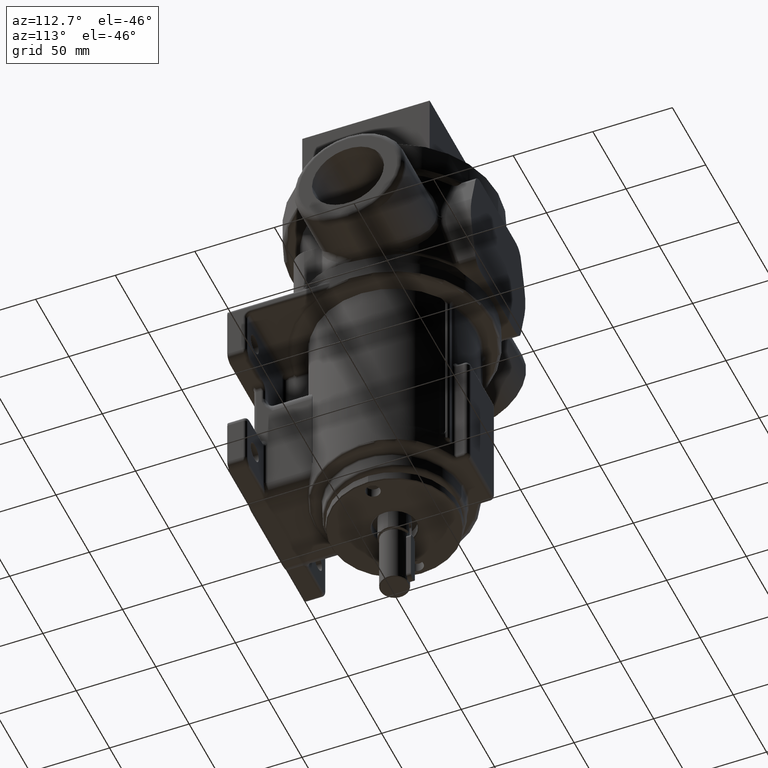
[diagram: clean part render]
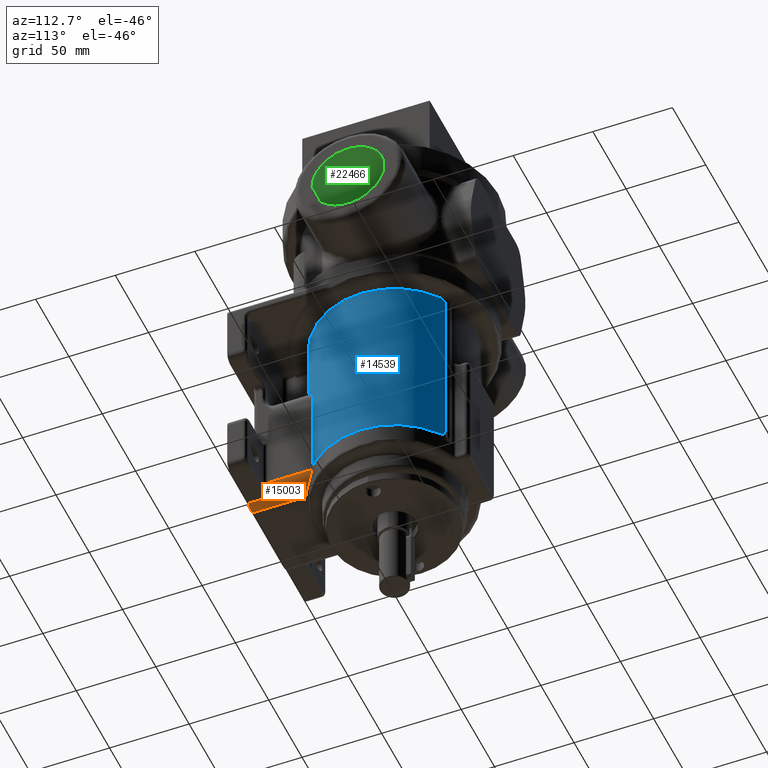
[diagram: same view with three faces highlighted in distinct colors, each labeled with its STEP entity id]
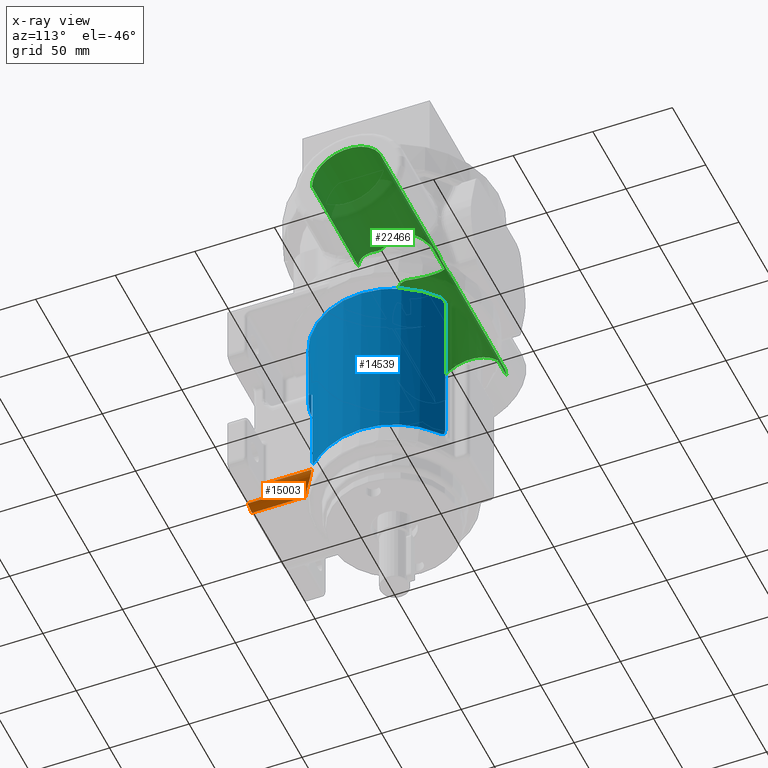
[diagram: x-ray of the same camera — body ghosted, the three highlighted faces saturated]
A machine part, auxiliary view with three faces highlighted in distinct colors.
The next image is the same camera in x-ray (body ghosted, the three faces saturated) — at least one of them is partly hidden behind the body in this view.
Their STEP definitions:

[orange] entity #15003 — the highlighted cylindrical surface (edge-blend (fillet) strip) has radius 10 mm, axis along (0, -1, 0).
#1702=CARTESIAN_POINT('',(2.3E1,-8.E1,-1.255E2));
#1703=DIRECTION('',(0.E0,-1.E0,0.E0));
#1704=DIRECTION('',(0.E0,0.E0,-1.E0));
#1705=AXIS2_PLACEMENT_3D('',#1702,#1703,#1704);
#1707=DIRECTION('',(1.535250761416E-6,9.999999999968E-1,-1.989514087840E-6));
#1708=VECTOR('',#1707,9.999999951066E0);
#1709=CARTESIAN_POINT('',(2.910953262706E1,-8.E1,-1.334166666646E2));
#1710=LINE('',#1709,#1708);
#1711=CARTESIAN_POINT('',(2.910954797957E1,-7.000000004897E1,
-1.334166865598E2));
#1712=CARTESIAN_POINT('',(2.910964935289E1,-6.993969480934E1,
-1.334166454274E2));
#1713=CARTESIAN_POINT('',(2.911295289033E1,-6.981843015441E1,
-1.334139964125E2));
#1714=CARTESIAN_POINT('',(2.912636447547E1,-6.963457173320E1,
-1.334036671974E2));
#1715=CARTESIAN_POINT('',(2.914889919196E1,-6.944874101461E1,
-1.333861522766E2));
#1716=CARTESIAN_POINT('',(2.918142879757E1,-6.926132611768E1,
-1.333607059670E2));
#1717=CARTESIAN_POINT('',(2.922400182007E1,-6.907209653390E1,
-1.333270698715E2));
#1718=CARTESIAN_POINT('',(2.927674917175E1,-6.888071355864E1,
-1.332848732206E2));
#1719=CARTESIAN_POINT('',(2.934003667842E1,-6.868650726654E1,
-1.332334705228E2));
#1720=CARTESIAN_POINT('',(2.941488042160E1,-6.848868962662E1,
-1.331715704025E2));
#1721=CARTESIAN_POINT('',(2.950179290030E1,-6.828838707648E1,
-1.330981351585E2));
#1722=CARTESIAN_POINT('',(2.960045737813E1,-6.808690787286E1,
-1.330126786710E2));
#1723=CARTESIAN_POINT('',(2.970969711185E1,-6.788571276349E1,
-1.329153811645E2));
#1724=CARTESIAN_POINT('',(2.982905611094E1,-6.768734947999E1,
-1.328057231454E2));
#1725=CARTESIAN_POINT('',(2.995740136346E1,-6.749363086012E1,
-1.326837212165E2));
#1726=CARTESIAN_POINT('',(3.009330572478E1,-6.730513640240E1,
-1.325496835568E2));
#1727=CARTESIAN_POINT('',(3.023575861359E1,-6.712408838099E1,
-1.324035120731E2));
#1728=CARTESIAN_POINT('',(3.038216200924E1,-6.695357626631E1,
-1.322468183491E2));
#1729=CARTESIAN_POINT('',(3.052955198679E1,-6.679540428071E1,
-1.320819859729E2));
#1730=CARTESIAN_POINT('',(3.067628527882E1,-6.665103318289E1,
-1.319102959681E2));
#1731=CARTESIAN_POINT('',(3.082069430918E1,-6.652146781647E1,
-1.317333158287E2));
#1732=CARTESIAN_POINT('',(3.096144549674E1,-6.640678568786E1,
-1.315525090650E2));
#1733=CARTESIAN_POINT('',(3.109760740388E1,-6.630684590158E1,
-1.313690742735E2));
#1734=CARTESIAN_POINT('',(3.122848550372E1,-6.622180830501E1,
-1.311840971921E2));
#1735=CARTESIAN_POINT('',(3.135368689642E1,-6.615129463184E1,
-1.309983995478E2));
#1736=CARTESIAN_POINT('',(3.147287843534E1,-6.609480700272E1,
-1.308128391021E2));
#1737=CARTESIAN_POINT('',(3.158593922709E1,-6.605163599947E1,
-1.306280610963E2));
#1738=CARTESIAN_POINT('',(3.169288016519E1,-6.602143676406E1,
-1.304445413406E2));
#1739=CARTESIAN_POINT('',(3.179379925446E1,-6.600371203188E1,
-1.302627163921E2));
#1740=CARTESIAN_POINT('',(3.185707064299E1,-6.599998216885E1,
-1.301428640708E2));
#1741=CARTESIAN_POINT('',(3.188779483978E1,-6.600000000012E1,
-1.300833287233E2));
#1743=CARTESIAN_POINT('',(2.3E1,-6.6E1,-1.255E2));
#1744=DIRECTION('',(0.E0,-1.E0,0.E0));
#1745=DIRECTION('',(8.887803753209E-1,0.E0,-4.583333333334E-1));
#1746=AXIS2_PLACEMENT_3D('',#1743,#1744,#1745);
#1748=CARTESIAN_POINT('',(3.3E1,-3.845776904606E1,-1.255E2));
#1749=CARTESIAN_POINT('',(3.300000030270E1,-3.845783479901E1,
-1.256177821270E2));
#1750=CARTESIAN_POINT('',(3.299583596761E1,-3.846228795254E1,
-1.258539649013E2));
#1751=CARTESIAN_POINT('',(3.297693152177E1,-3.848295864879E1,
-1.262094530844E2));
#1752=CARTESIAN_POINT('',(3.294515548734E1,-3.851757811847E1,
-1.265662749652E2));
#1753=CARTESIAN_POINT('',(3.290024429166E1,-3.856640475195E1,
-1.269244443276E2));
#1754=CARTESIAN_POINT('',(3.284171233123E1,-3.862982955849E1,
-1.272848580651E2));
#1755=CARTESIAN_POINT('',(3.276899134291E1,-3.870831291787E1,
-1.276478306826E2));
#1756=CARTESIAN_POINT('',(3.268140450903E1,-3.880236758616E1,
-1.280136432497E2));
#1757=CARTESIAN_POINT('',(3.257812260920E1,-3.891261969446E1,
-1.283826153580E2));
#1758=CARTESIAN_POINT('',(3.245822587046E1,-3.903972917536E1,
-1.287548494401E2));
#1759=CARTESIAN_POINT('',(3.232069634007E1,-3.918437449314E1,
-1.291303106039E2));
#1760=CARTESIAN_POINT('',(3.216444156314E1,-3.934723094403E1,
-1.295087732553E2));
#1761=CARTESIAN_POINT('',(3.198833078108E1,-3.952891687175E1,
-1.298897751566E2));
#1762=CARTESIAN_POINT('',(3.179122115598E1,-3.972994930793E1,
-1.302726129273E2));
#1763=CARTESIAN_POINT('',(3.157200851752E1,-3.995069525019E1,
-1.306563015958E2));
#1764=CARTESIAN_POINT('',(3.132968547517E1,-4.019130245259E1,
-1.310395499375E2));
#1765=CARTESIAN_POINT('',(3.106342888578E1,-4.045161209549E1,
-1.314207204837E2));
#1766=CARTESIAN_POINT('',(3.077266767526E1,-4.073111613851E1,
-1.317978527621E2));
#1767=CARTESIAN_POINT('',(3.045717686723E1,-4.102888037829E1,
-1.321686692446E2));
#1768=CARTESIAN_POINT('',(3.011715046117E1,-4.134351110382E1,
-1.325306384802E2));
#1769=CARTESIAN_POINT('',(2.975318386029E1,-4.167322411222E1,
-1.328811155622E2));
#1770=CARTESIAN_POINT('',(2.936642317570E1,-4.201576654989E1,
-1.332173393558E2));
#1771=CARTESIAN_POINT('',(2.895817076761E1,-4.236880474904E1,
-1.335368153031E2));
#1772=CARTESIAN_POINT('',(2.867337716270E1,-4.260898010304E1,
-1.337367075544E2));
#1773=CARTESIAN_POINT('',(2.852770798393E1,-4.273020616949E1,
-1.338333333333E2));
#1775=CARTESIAN_POINT('',(2.852770764751E1,-4.273020616950E1,
-1.338333328262E2));
#1776=CARTESIAN_POINT('',(2.840767081163E1,-4.283010293436E1,
-1.339129570217E2));
#1777=CARTESIAN_POINT('',(2.815931272368E1,-4.302794432109E1,
-1.340702334364E2));
#1778=CARTESIAN_POINT('',(2.776159003832E1,-4.332010670562E1,
-1.342977065783E2));
#1779=CARTESIAN_POINT('',(2.734035658458E1,-4.360804866209E1,-1.345132162E2));
#1780=CARTESIAN_POINT('',(2.689760569728E1,-4.389276007776E1,
-1.347135315635E2));
#1781=CARTESIAN_POINT('',(2.643643257235E1,-4.417517773080E1,
-1.348954244499E2));
#1782=CARTESIAN_POINT('',(2.596138086063E1,-4.445590742812E1,
-1.350558632941E2));
#1783=CARTESIAN_POINT('',(2.547692135102E1,-4.473579023507E1,
-1.351927466284E2));
#1784=CARTESIAN_POINT('',(2.498688015166E1,-4.501592552281E1,
-1.353049044757E2));
#1785=CARTESIAN_POINT('',(2.449402887032E1,-4.529760392904E1,
-1.353919724952E2));
#1786=CARTESIAN_POINT('',(2.399843991982E1,-4.558299350893E1,
-1.354542033847E2));
#1787=CARTESIAN_POINT('',(2.350053269755E1,-4.587345601333E1,
-1.354916327975E2));
#1788=CARTESIAN_POINT('',(2.316695033933E1,-4.607121612044E1,
-1.354999988978E2));
#1789=CARTESIAN_POINT('',(2.3E1,-4.617100946834E1,-1.354999997359E2));
#2107=DIRECTION('',(6.637251096514E-14,-1.E0,-7.806508737119E-9));
#2108=VECTOR('',#2107,3.382899053166E1);
#2109=CARTESIAN_POINT('',(2.3E1,-4.617100946834E1,-1.354999997359E2));
#2110=LINE('',#2109,#2108);
#4058=DIRECTION('',(1.914319879958E-6,-9.999999999982E-1,9.513587468323E-11));
#4059=VECTOR('',#4058,2.754223098839E1);
#4060=CARTESIAN_POINT('',(3.299994727536E1,-3.845776901166E1,
-1.255000000004E2));
#4061=LINE('',#4060,#4059);
#5067=CARTESIAN_POINT('',(2.910954797957E1,-7.000000004897E1,
-1.334166865598E2));
#11880=CARTESIAN_POINT('',(3.3E1,-6.6E1,-1.254999999978E2));
#11882=VERTEX_POINT('',#11880);
#11888=CARTESIAN_POINT('',(3.188780375321E1,-6.6E1,-1.300833333333E2));
#11889=VERTEX_POINT('',#11888);
#11891=VERTEX_POINT('',#5067);
#11963=CARTESIAN_POINT('',(3.299994727536E1,-3.845776901166E1,
-1.255000000004E2));
#11964=VERTEX_POINT('',#11963);
#12001=CARTESIAN_POINT('',(2.3E1,-8.E1,-1.355E2));
#12003=VERTEX_POINT('',#12001);
#12007=CARTESIAN_POINT('',(2.910953263235E1,-8.E1,-1.334166666606E2));
#12008=VERTEX_POINT('',#12007);
#12011=CARTESIAN_POINT('',(2.3E1,-4.617100946834E1,-1.354999997359E2));
#12012=VERTEX_POINT('',#12011);
#12160=VERTEX_POINT('',#1775);
#14981=CARTESIAN_POINT('',(2.3E1,2.51022E2,-1.255E2));
#14982=DIRECTION('',(0.E0,-1.E0,0.E0));
#14983=DIRECTION('',(0.E0,0.E0,-1.E0));
#14984=AXIS2_PLACEMENT_3D('',#14981,#14982,#14983);
#14985=CYLINDRICAL_SURFACE('',#14984,1.E1);
#14987=ORIENTED_EDGE('',*,*,#14986,.T.);
#14989=ORIENTED_EDGE('',*,*,#14988,.T.);
#14991=ORIENTED_EDGE('',*,*,#14990,.T.);
#14993=ORIENTED_EDGE('',*,*,#14992,.T.);
#14995=ORIENTED_EDGE('',*,*,#14994,.F.);
#14996=ORIENTED_EDGE('',*,*,#14972,.T.);
#14998=ORIENTED_EDGE('',*,*,#14997,.T.);
#15000=ORIENTED_EDGE('',*,*,#14999,.T.);
#15001=EDGE_LOOP('',(#14987,#14989,#14991,#14993,#14995,#14996,#14998,#15000));
#15002=FACE_OUTER_BOUND('',#15001,.F.);
#15003=ADVANCED_FACE('',(#15002),#14985,.T.);
#1706=CIRCLE('',#1705,1.E1);
#1742=B_SPLINE_CURVE_WITH_KNOTS('',3,(#1711,#1712,#1713,#1714,#1715,#1716,#1717,
#1718,#1719,#1720,#1721,#1722,#1723,#1724,#1725,#1726,#1727,#1728,#1729,#1730,
#1731,#1732,#1733,#1734,#1735,#1736,#1737,#1738,#1739,#1740,#1741),
.UNSPECIFIED.,.F.,.F.,(4,1,1,1,1,1,1,1,1,1,1,1,1,1,1,1,1,1,1,1,1,1,1,1,1,1,1,1,
4),(0.E0,3.571428571429E-2,7.142857142857E-2,1.071428571429E-1,
1.428571428571E-1,1.785714285714E-1,2.142857142857E-1,2.5E-1,2.857142857143E-1,
3.214285714286E-1,3.571428571429E-1,3.928571428571E-1,4.285714285714E-1,
4.642857142857E-1,5.E-1,5.357142857143E-1,5.714285714286E-1,6.071428571429E-1,
6.428571428571E-1,6.785714285714E-1,7.142857142857E-1,7.5E-1,7.857142857143E-1,
8.214285714286E-1,8.571428571429E-1,8.928571428571E-1,9.285714285714E-1,
9.642857142857E-1,1.E0),.UNSPECIFIED.);
#1747=CIRCLE('',#1746,1.E1);
#1774=B_SPLINE_CURVE_WITH_KNOTS('',3,(#1748,#1749,#1750,#1751,#1752,#1753,#1754,
#1755,#1756,#1757,#1758,#1759,#1760,#1761,#1762,#1763,#1764,#1765,#1766,#1767,
#1768,#1769,#1770,#1771,#1772,#1773),.UNSPECIFIED.,.F.,.F.,(4,1,1,1,1,1,1,1,1,1,
1,1,1,1,1,1,1,1,1,1,1,1,1,4),(0.E0,4.347826086957E-2,8.695652173913E-2,
1.304347826087E-1,1.739130434783E-1,2.173913043478E-1,2.608695652174E-1,
3.043478260870E-1,3.478260869565E-1,3.913043478261E-1,4.347826086957E-1,
4.782608695652E-1,5.217391304348E-1,5.652173913043E-1,6.086956521739E-1,
6.521739130435E-1,6.956521739130E-1,7.391304347826E-1,7.826086956522E-1,
8.260869565217E-1,8.695652173913E-1,9.130434782609E-1,9.565217391304E-1,1.E0),
.UNSPECIFIED.);
#1790=B_SPLINE_CURVE_WITH_KNOTS('',3,(#1775,#1776,#1777,#1778,#1779,#1780,#1781,
#1782,#1783,#1784,#1785,#1786,#1787,#1788,#1789),.UNSPECIFIED.,.F.,.F.,(4,1,1,1,
1,1,1,1,1,1,1,1,4),(0.E0,8.333333333333E-2,1.666666666667E-1,2.5E-1,
3.333333333333E-1,4.166666666667E-1,5.E-1,5.833333333333E-1,6.666666666667E-1,
7.5E-1,8.333333333333E-1,9.166666666667E-1,1.E0),.UNSPECIFIED.);
#14972=EDGE_CURVE('',#11964,#12160,#1774,.T.);
#14986=EDGE_CURVE('',#12003,#12008,#1706,.T.);
#14988=EDGE_CURVE('',#12008,#11891,#1710,.T.);
#14990=EDGE_CURVE('',#11891,#11889,#1742,.T.);
#14992=EDGE_CURVE('',#11889,#11882,#1747,.T.);
#14994=EDGE_CURVE('',#11964,#11882,#4061,.T.);
#14997=EDGE_CURVE('',#12160,#12012,#1790,.T.);
#14999=EDGE_CURVE('',#12012,#12003,#2110,.T.);

[blue] entity #14539 — the highlighted cylindrical surface (partial cylindrical patch) has radius 50 mm, axis along (0, 0, 1).
#339=CARTESIAN_POINT('',(3.360006979150E1,-3.702749397416E1,-1.223183741965E2));
#340=CARTESIAN_POINT('',(3.369567637218E1,-3.694073715001E1,-1.223805923648E2));
#341=CARTESIAN_POINT('',(3.387731159131E1,-3.677456017274E1,-1.224931538268E2));
#342=CARTESIAN_POINT('',(3.411926107071E1,-3.655008611286E1,-1.226233279879E2));
#343=CARTESIAN_POINT('',(3.433812581297E1,-3.634446966995E1,-1.227239643419E2));
#344=CARTESIAN_POINT('',(3.453819711483E1,-3.615434945713E1,-1.227997590115E2));
#345=CARTESIAN_POINT('',(3.466477310062E1,-3.603277298109E1,-1.228378333174E2));
#346=CARTESIAN_POINT('',(3.472591926364E1,-3.597374780719E1,-1.228534144645E2));
#348=CARTESIAN_POINT('',(3.020833333334E1,3.984289895605E1,-1.235E2));
#349=CARTESIAN_POINT('',(3.063216158635E1,3.952155825348E1,-1.234999999966E2));
#350=CARTESIAN_POINT('',(3.146956244237E1,3.886535030652E1,-1.234999999914E2));
#351=CARTESIAN_POINT('',(3.269361769740E1,3.784146107942E1,-1.234999999893E2));
#352=CARTESIAN_POINT('',(3.388438043740E1,3.677903719702E1,-1.234999999910E2));
#353=CARTESIAN_POINT('',(3.504063808938E1,3.567916054306E1,-1.234999999953E2));
#354=CARTESIAN_POINT('',(3.616121321465E1,3.454295114222E1,-1.235000000007E2));
#355=CARTESIAN_POINT('',(3.724496471126E1,3.337156601700E1,-1.235000000060E2));
#356=CARTESIAN_POINT('',(3.829078897425E1,3.216619801125E1,-1.235000000097E2));
#357=CARTESIAN_POINT('',(3.929762102076E1,3.092807457436E1,-1.235000000106E2));
#358=CARTESIAN_POINT('',(4.026443557544E1,2.965845651006E1,-1.235000000073E2));
#359=CARTESIAN_POINT('',(4.119024811389E1,2.835863669299E1,-1.234999999980E2));
#360=CARTESIAN_POINT('',(4.207411586436E1,2.702993875319E1,-1.234999999830E2));
#361=CARTESIAN_POINT('',(4.291513876758E1,2.567371572888E1,-1.234999999702E2));
#362=CARTESIAN_POINT('',(4.371246039407E1,2.429134868764E1,-1.234999999671E2));
#363=CARTESIAN_POINT('',(4.446526881699E1,2.288424531858E1,-1.234999999786E2));
#364=CARTESIAN_POINT('',(4.517279743842E1,2.145383849941E1,-1.235000000121E2));
#365=CARTESIAN_POINT('',(4.583432576844E1,2.000158484028E1,-1.235000000635E2));
#366=CARTESIAN_POINT('',(4.644918015871E1,1.852896320215E1,-1.235000001102E2));
#367=CARTESIAN_POINT('',(4.701673449069E1,1.703747318674E1,-1.235000001322E2));
#368=CARTESIAN_POINT('',(4.753641081822E1,1.552863359407E1,-1.235000000893E2));
#369=CARTESIAN_POINT('',(4.800767995105E1,1.400398088131E1,-1.234999999120E2));
#370=CARTESIAN_POINT('',(4.843006197886E1,1.246506764946E1,-1.234999996651E2));
#371=CARTESIAN_POINT('',(4.880312676571E1,1.091346107153E1,-1.234999995519E2));
#372=CARTESIAN_POINT('',(4.912649441372E1,9.350741213291E0,-1.234999997207E2));
#373=CARTESIAN_POINT('',(4.939983567598E1,7.778499221558E0,-1.234999999686E2));
#374=CARTESIAN_POINT('',(4.962287223043E1,6.198335821336E0,-1.235000000672E2));
#375=CARTESIAN_POINT('',(4.979537686540E1,4.611860536477E0,-1.235000000223E2));
#376=CARTESIAN_POINT('',(4.991717384850E1,3.020690009898E0,-1.234999999869E2));
#377=CARTESIAN_POINT('',(4.998813927877E1,1.426444649129E0,-1.235000000330E2));
#378=CARTESIAN_POINT('',(5.000820103590E1,-1.692552908916E-1,
-1.235000000474E2));
#379=CARTESIAN_POINT('',(4.997733829387E1,-1.764789094090E0,-1.234999998917E2));
#380=CARTESIAN_POINT('',(4.989558223883E1,-3.358524239484E0,-1.234999997789E2));
#381=CARTESIAN_POINT('',(4.976301799563E1,-4.948820959530E0,-1.235000000639E2));
#382=CARTESIAN_POINT('',(4.957978195422E1,-6.534065716840E0,-1.235000008938E2));
#383=CARTESIAN_POINT('',(4.934605438358E1,-8.112693254347E0,-1.234999999993E2));
#384=CARTESIAN_POINT('',(4.906205904979E1,-9.683145262026E0,-1.235000000456E2));
#385=CARTESIAN_POINT('',(4.872810427453E1,-1.124369096191E1,-1.234999998825E2));
#386=CARTESIAN_POINT('',(4.834460016615E1,-1.279249950960E1,-1.235000005568E2));
#387=CARTESIAN_POINT('',(4.791191783654E1,-1.432817995473E1,-1.234999980908E2));
#388=CARTESIAN_POINT('',(4.743027102666E1,-1.584989710111E1,-1.235000073489E2));
#389=CARTESIAN_POINT('',(4.689989730979E1,-1.735655864957E1,-1.234999707499E2));
#390=CARTESIAN_POINT('',(4.632209674174E1,-1.884435758114E1,-1.234999171900E2));
#391=CARTESIAN_POINT('',(4.569911126990E1,-2.030846055839E1,-1.234999642758E2));
#392=CARTESIAN_POINT('',(4.502938312010E1,-2.175330370682E1,-1.234999226022E2));
#393=CARTESIAN_POINT('',(4.430730761875E1,-2.318905557840E1,-1.235000781417E2));
#394=CARTESIAN_POINT('',(4.353351424760E1,-2.461108631595E1,-1.235000056081E2));
#395=CARTESIAN_POINT('',(4.271848399629E1,-2.599970342774E1,-1.235001015736E2));
#396=CARTESIAN_POINT('',(4.187300869344E1,-2.733985589650E1,-1.234999515176E2));
#397=CARTESIAN_POINT('',(4.101072640390E1,-2.861613323383E1,-1.235006144259E2));
#398=CARTESIAN_POINT('',(4.014424742816E1,-2.981844416505E1,-1.234961570163E2));
#399=CARTESIAN_POINT('',(3.928426244875E1,-3.094154690828E1,-1.234760360691E2));
#400=CARTESIAN_POINT('',(3.844202567809E1,-3.198076109715E1,-1.234341595261E2));
#401=CARTESIAN_POINT('',(3.763041429258E1,-3.293075604900E1,-1.233675386377E2));
#402=CARTESIAN_POINT('',(3.685518794991E1,-3.379517063161E1,-1.232759688855E2));
#403=CARTESIAN_POINT('',(3.611368671792E1,-3.458564547233E1,-1.231598699588E2));
#404=CARTESIAN_POINT('',(3.540433672566E1,-3.531085438626E1,-1.230200347810E2));
#405=CARTESIAN_POINT('',(3.494856698385E1,-3.575882311272E1,-1.229115314543E2));
#406=CARTESIAN_POINT('',(3.472591926364E1,-3.597374780719E1,-1.228534144645E2));
#408=CARTESIAN_POINT('',(3.020833333334E1,3.984289895605E1,-1.235E2));
#409=CARTESIAN_POINT('',(3.009977990782E1,3.992520265755E1,-1.234999762325E2));
#410=CARTESIAN_POINT('',(2.988404073416E1,4.008737761851E1,-1.234936149822E2));
#411=CARTESIAN_POINT('',(2.956409370582E1,4.032388888104E1,-1.234648034436E2));
#412=CARTESIAN_POINT('',(2.924964772040E1,4.055252405671E1,-1.234177077930E2));
#413=CARTESIAN_POINT('',(2.894179414438E1,4.077277177543E1,-1.233530173822E2));
#414=CARTESIAN_POINT('',(2.864168517553E1,4.098411026223E1,-1.232715542144E2));
#415=CARTESIAN_POINT('',(2.835031406289E1,4.118616340614E1,-1.231741548262E2));
#416=CARTESIAN_POINT('',(2.806857604833E1,4.137864519316E1,-1.230617003729E2));
#417=CARTESIAN_POINT('',(2.779723909496E1,4.156137126852E1,-1.229351003357E2));
#418=CARTESIAN_POINT('',(2.753699903403E1,4.173421483933E1,-1.227953130143E2));
#419=CARTESIAN_POINT('',(2.728829160328E1,4.189721983177E1,-1.226432647501E2));
#420=CARTESIAN_POINT('',(2.705199683044E1,4.205014285905E1,-1.224801369544E2));
#421=CARTESIAN_POINT('',(2.690187986091E1,4.214613107781E1,-1.223642341272E2));
#422=CARTESIAN_POINT('',(2.682877634381E1,4.219261499236E1,-1.223044753569E2));
#1057=CARTESIAN_POINT('',(0.E0,0.E0,-1.E1));
#1058=DIRECTION('',(0.E0,0.E0,1.E0));
#1059=DIRECTION('',(5.8E-1,-8.146164741767E-1,0.E0));
#1060=AXIS2_PLACEMENT_3D('',#1057,#1058,#1059);
#1403=CARTESIAN_POINT('',(2.683067800960E1,4.219140573085E1,-1.223056995231E2));
#1404=CARTESIAN_POINT('',(2.678757464277E1,4.221875816622E1,-1.221581256546E2));
#1405=CARTESIAN_POINT('',(2.670363619547E1,4.227204043647E1,-1.218637181612E2));
#1406=CARTESIAN_POINT('',(2.658263761633E1,4.234818214669E1,-1.213904771166E2));
#1407=CARTESIAN_POINT('',(2.648263489676E1,4.241077808858E1,-1.209825638136E2));
#1408=CARTESIAN_POINT('',(2.639564241384E1,4.246496313055E1,-1.206161514707E2));
#1409=CARTESIAN_POINT('',(2.631927125199E1,4.251233158305E1,-1.202877089562E2));
#1410=CARTESIAN_POINT('',(2.625146886067E1,4.255422727059E1,-1.199909062806E2));
#1411=CARTESIAN_POINT('',(2.619109779902E1,4.259140620946E1,-1.197216303400E2));
#1412=CARTESIAN_POINT('',(2.613744936772E1,4.262434629361E1,-1.194762648743E2));
#1413=CARTESIAN_POINT('',(2.609064624713E1,4.265300728303E1,-1.192539542981E2));
#1414=CARTESIAN_POINT('',(2.606431749721E1,4.266909357475E1,-1.191211473028E2));
#1415=CARTESIAN_POINT('',(2.605245728231E1,4.267633383450E1,-1.190585629535E2));
#1417=CARTESIAN_POINT('',(2.499918195708E1,-4.330174247622E1,
-5.218895414873E1));
#1418=CARTESIAN_POINT('',(2.483249963679E1,-4.339797790675E1,
-5.213128592822E1));
#1419=CARTESIAN_POINT('',(2.449777218896E1,-4.358864357386E1,
-5.202552701933E1));
#1420=CARTESIAN_POINT('',(2.399437097706E1,-4.386775992601E1,
-5.188502935080E1));
#1421=CARTESIAN_POINT('',(2.348877001991E1,-4.414054313566E1,
-5.176732851320E1));
#1422=CARTESIAN_POINT('',(2.298056583227E1,-4.440724456599E1,
-5.167059648327E1));
#1423=CARTESIAN_POINT('',(2.246920650157E1,-4.466816260688E1,
-5.159504602136E1));
#1424=CARTESIAN_POINT('',(2.195408166835E1,-4.492358746687E1,
-5.154060002560E1));
#1425=CARTESIAN_POINT('',(2.143462842936E1,-4.517375415209E1,
-5.150752006312E1));
#1426=CARTESIAN_POINT('',(2.108481461562E1,-4.533726783315E1,
-5.150000811674E1));
#1427=CARTESIAN_POINT('',(2.090909090909E1,-4.541816726108E1,-5.15E1));
#1429=CARTESIAN_POINT('',(0.E0,0.E0,-5.15E1));
#1430=DIRECTION('',(0.E0,0.E0,-1.E0));
#1431=DIRECTION('',(4.181818181818E-1,-9.083633452216E-1,0.E0));
#1432=AXIS2_PLACEMENT_3D('',#1429,#1430,#1431);
#1434=DIRECTION('',(-5.426110065001E-8,4.391190961483E-7,9.999999999999E-1));
#1435=VECTOR('',#1434,3.949245103600E1);
#1436=CARTESIAN_POINT('',(6.132077589458E0,-4.962256897105E1,
-5.149999999257E1));
#1437=LINE('',#1436,#1435);
#1438=CARTESIAN_POINT('',(6.249999908604E0,-4.960783635693E1,
-1.199999999998E1));
#1439=CARTESIAN_POINT('',(6.236818413712E0,-4.960949701381E1,
-1.200000242062E1));
#1440=CARTESIAN_POINT('',(6.210507703705E0,-4.961280229606E1,
-1.200063706404E1));
#1441=CARTESIAN_POINT('',(6.171177070899E0,-4.961770954863E1,
-1.200312973951E1));
#1442=CARTESIAN_POINT('',(6.145087942169E0,-4.962094346658E1,
-1.200588377011E1));
#1443=CARTESIAN_POINT('',(6.132075446554E0,-4.962255162916E1,
-1.200754895657E1));
#1445=CARTESIAN_POINT('',(2.499918195708E1,-4.330174247622E1,
-5.218895414873E1));
#1446=CARTESIAN_POINT('',(2.506324526867E1,-4.326475414257E1,
-5.231013795930E1));
#1447=CARTESIAN_POINT('',(2.518119711620E1,-4.319629249180E1,
-5.254723963966E1));
#1448=CARTESIAN_POINT('',(2.533700206709E1,-4.310505308342E1,
-5.287760267391E1));
#1449=CARTESIAN_POINT('',(2.547004006935E1,-4.302654917258E1,
-5.319297452386E1));
#1450=CARTESIAN_POINT('',(2.554735999634E1,-4.298062499930E1,
-5.339639406956E1));
#1451=CARTESIAN_POINT('',(2.558307690148E1,-4.295935493292E1,
-5.349603717407E1));
#1471=CARTESIAN_POINT('',(2.558307690111E1,-4.295935493315E1,
-5.349603717307E1));
#1472=CARTESIAN_POINT('',(2.566927656509E1,-4.290802146606E1,
-5.373650785175E1));
#1473=CARTESIAN_POINT('',(2.583769612307E1,-4.280700117181E1,
-5.419127571352E1));
#1474=CARTESIAN_POINT('',(2.605907794429E1,-4.267251437770E1,
-5.479898543680E1));
#1475=CARTESIAN_POINT('',(2.618372052824E1,-4.259597485876E1,
-5.516671322169E1));
#1476=CARTESIAN_POINT('',(2.623958906722E1,-4.256153137166E1,
-5.534063381400E1));
#1536=CARTESIAN_POINT('',(2.623958906722E1,-4.256153137166E1,
-5.534063381400E1));
#1537=CARTESIAN_POINT('',(2.626561704398E1,-4.254548487576E1,
-5.542165849799E1));
#1538=CARTESIAN_POINT('',(2.632196032483E1,-4.251068357414E1,
-5.558285249188E1));
#1539=CARTESIAN_POINT('',(2.641941746300E1,-4.245019843231E1,
-5.582152213343E1));
#1540=CARTESIAN_POINT('',(2.652951652674E1,-4.238149402766E1,
-5.605580454467E1));
#1541=CARTESIAN_POINT('',(2.665253733363E1,-4.230425577898E1,
-5.628577872872E1));
#1542=CARTESIAN_POINT('',(2.678852618161E1,-4.221829354850E1,
-5.651080223972E1));
#1543=CARTESIAN_POINT('',(2.693707555882E1,-4.212368973647E1,
-5.672967369943E1));
#1544=CARTESIAN_POINT('',(2.709869698554E1,-4.201992305072E1,
-5.694253387306E1));
#1545=CARTESIAN_POINT('',(2.727298477745E1,-4.190703695750E1,
-5.714815249844E1));
#1546=CARTESIAN_POINT('',(2.745984034012E1,-4.178486563011E1,
-5.734585691638E1));
#1547=CARTESIAN_POINT('',(2.765952792098E1,-4.165298101438E1,
-5.753522501876E1));
#1548=CARTESIAN_POINT('',(2.787124513702E1,-4.151164473128E1,
-5.771486840796E1));
#1549=CARTESIAN_POINT('',(2.809542870702E1,-4.136027908186E1,
-5.788451834457E1));
#1550=CARTESIAN_POINT('',(2.825276084076E1,-4.125277042152E1,
-5.799014829049E1));
#1551=CARTESIAN_POINT('',(2.833333333333E1,-4.119735698103E1,
-5.804094830637E1));
#1557=CARTESIAN_POINT('',(2.833333333333E1,-4.119735698103E1,
-5.804094830637E1));
#1558=CARTESIAN_POINT('',(2.847525405589E1,-4.109975151714E1,
-5.813042766501E1));
#1559=CARTESIAN_POINT('',(2.875349317939E1,-4.090623536234E1,
-5.831582183088E1));
#1560=CARTESIAN_POINT('',(2.915440118183E1,-4.062140296474E1,
-5.861294639665E1));
#1561=CARTESIAN_POINT('',(2.953640891528E1,-4.034441199614E1,
-5.892662189664E1));
#1562=CARTESIAN_POINT('',(2.989926380067E1,-4.007616019675E1,
-5.925573988558E1));
#1563=CARTESIAN_POINT('',(3.024157194467E1,-3.981840122579E1,
-5.959807235490E1));
#1564=CARTESIAN_POINT('',(3.056226967257E1,-3.957270281756E1,
-5.995119363314E1));
#1565=CARTESIAN_POINT('',(3.086164261529E1,-3.933959579719E1,
-6.031395699840E1));
#1566=CARTESIAN_POINT('',(3.113898669233E1,-3.912035377234E1,
-6.068391714047E1));
#1567=CARTESIAN_POINT('',(3.139438311312E1,-3.891562223981E1,
-6.105923887662E1));
#1568=CARTESIAN_POINT('',(3.162875193898E1,-3.872531314391E1,
-6.143937123416E1));
#1569=CARTESIAN_POINT('',(3.184217714752E1,-3.854995249704E1,
-6.182252507895E1));
#1570=CARTESIAN_POINT('',(3.203513369679E1,-3.838970117314E1,
-6.220731499045E1));
#1571=CARTESIAN_POINT('',(3.220879294009E1,-3.824407099789E1,
-6.259397648461E1));
#1572=CARTESIAN_POINT('',(3.236330922945E1,-3.811336064917E1,
-6.298074253220E1));
#1573=CARTESIAN_POINT('',(3.245386984903E1,-3.803615947025E1,
-6.323770846034E1));
#1574=CARTESIAN_POINT('',(3.249615361854E1,-3.8E1,-6.336582284275E1));
#1596=DIRECTION('',(0.E0,0.E0,1.E0));
#1597=VECTOR('',#1596,5.513417715725E1);
#1598=CARTESIAN_POINT('',(3.249615361854E1,-3.8E1,-1.185E2));
#1599=LINE('',#1598,#1597);
#1616=CARTESIAN_POINT('',(3.249615361854E1,-3.8E1,-1.185E2));
#1617=CARTESIAN_POINT('',(3.249615361854E1,-3.8E1,-1.185434626905E2));
#1618=CARTESIAN_POINT('',(3.249837153982E1,-3.799810347449E1,
-1.186297315377E2));
#1619=CARTESIAN_POINT('',(3.250793183069E1,-3.798992572421E1,
-1.187562175989E2));
#1620=CARTESIAN_POINT('',(3.252360458909E1,-3.797651041704E1,
-1.188817187800E2));
#1621=CARTESIAN_POINT('',(3.254555850615E1,-3.795769997478E1,
-1.190074446729E2));
#1622=CARTESIAN_POINT('',(3.257427267912E1,-3.793306408737E1,
-1.191346666775E2));
#1623=CARTESIAN_POINT('',(3.260964521632E1,-3.790266350017E1,
-1.192617394169E2));
#1624=CARTESIAN_POINT('',(3.265126248504E1,-3.786682190166E1,
-1.193870841449E2));
#1625=CARTESIAN_POINT('',(3.268260080924E1,-3.783976853499E1,
-1.194682597509E2));
#1626=CARTESIAN_POINT('',(3.269914749254E1,-3.782546434958E1,
-1.195083414192E2));
#1638=CARTESIAN_POINT('',(3.269914810251E1,-3.782546382227E1,
-1.195083432424E2));
#1639=CARTESIAN_POINT('',(3.270499690224E1,-3.782040768418E1,
-1.195225108908E2));
#1640=CARTESIAN_POINT('',(3.271687905374E1,-3.781013110429E1,
-1.195533830449E2));
#1641=CARTESIAN_POINT('',(3.273515238976E1,-3.779431175010E1,
-1.196069408354E2));
#1642=CARTESIAN_POINT('',(3.275429768662E1,-3.777772106775E1,
-1.196687490822E2));
#1643=CARTESIAN_POINT('',(3.277461466170E1,-3.776009655516E1,
-1.197395304656E2));
#1644=CARTESIAN_POINT('',(3.279648286616E1,-3.774110510922E1,
-1.198201901887E2));
#1645=CARTESIAN_POINT('',(3.282032504599E1,-3.772037418604E1,
-1.199117057938E2));
#1646=CARTESIAN_POINT('',(3.284661283341E1,-3.769748630916E1,
-1.200150948898E2));
#1647=CARTESIAN_POINT('',(3.287590028440E1,-3.767194902238E1,
-1.201314312305E2));
#1648=CARTESIAN_POINT('',(3.290882390857E1,-3.764319362773E1,
-1.202618531601E2));
#1649=CARTESIAN_POINT('',(3.294614697187E1,-3.761053484824E1,
-1.204075796598E2));
#1650=CARTESIAN_POINT('',(3.298880950396E1,-3.757312434772E1,
-1.205699866737E2));
#1651=CARTESIAN_POINT('',(3.303797050033E1,-3.752991022708E1,
-1.207505576010E2));
#1652=CARTESIAN_POINT('',(3.309522511648E1,-3.747943853722E1,
-1.209511879871E2));
#1653=CARTESIAN_POINT('',(3.316230305856E1,-3.742011304650E1,
-1.211729923130E2));
#1654=CARTESIAN_POINT('',(3.324248590793E1,-3.734891616875E1,
-1.214198189211E2));
#1655=CARTESIAN_POINT('',(3.333796683705E1,-3.726374815124E1,
-1.216903163470E2));
#1656=CARTESIAN_POINT('',(3.346060100362E1,-3.715372423428E1,
-1.220044663646E2));
#1657=CARTESIAN_POINT('',(3.355211415820E1,-3.707099265476E1,
-1.222126887604E2));
#1658=CARTESIAN_POINT('',(3.360105299329E1,-3.702660175795E1,
-1.223189675394E2));
#5111=CARTESIAN_POINT('',(0.E0,0.E0,-1.2E1));
#5112=DIRECTION('',(0.E0,0.E0,-1.E0));
#5113=DIRECTION('',(4.999894006364E-1,-8.660315232434E-1,0.E0));
#5114=AXIS2_PLACEMENT_3D('',#5111,#5112,#5113);
#5126=CARTESIAN_POINT('',(2.778497950649E1,-4.156915820442E1,
-1.025706703005E1));
#5127=CARTESIAN_POINT('',(2.776087531755E1,-4.158526953370E1,
-1.026774195665E1));
#5128=CARTESIAN_POINT('',(2.770883272315E1,-4.161999451624E1,
-1.029127151028E1));
#5129=CARTESIAN_POINT('',(2.761953503973E1,-4.167931882770E1,
-1.033344048692E1));
#5130=CARTESIAN_POINT('',(2.751849186581E1,-4.174611417256E1,
-1.038301118368E1));
#5131=CARTESIAN_POINT('',(2.740593699190E1,-4.182010635567E1,
-1.043995667265E1));
#5132=CARTESIAN_POINT('',(2.728144484331E1,-4.190144193995E1,
-1.050441383215E1));
#5133=CARTESIAN_POINT('',(2.714446585492E1,-4.199032936765E1,
-1.057653461719E1));
#5134=CARTESIAN_POINT('',(2.699111573938E1,-4.208909988453E1,
-1.065834304547E1));
#5135=CARTESIAN_POINT('',(2.681574260409E1,-4.220108990612E1,
-1.075312906128E1));
#5136=CARTESIAN_POINT('',(2.661690617587E1,-4.232684739043E1,
-1.086229200488E1));
#5137=CARTESIAN_POINT('',(2.638407783504E1,-4.247243903125E1,
-1.099309102923E1));
#5138=CARTESIAN_POINT('',(2.613925450293E1,-4.262352931718E1,
-1.113572212659E1));
#5139=CARTESIAN_POINT('',(2.591697413847E1,-4.275897210991E1,
-1.127178386261E1));
#5140=CARTESIAN_POINT('',(2.572648438905E1,-4.287379304637E1,
-1.139530222018E1));
#5141=CARTESIAN_POINT('',(2.556042957198E1,-4.297296146788E1,
-1.151015410197E1));
#5142=CARTESIAN_POINT('',(2.541341562460E1,-4.306003700908E1,
-1.161957031413E1));
#5143=CARTESIAN_POINT('',(2.528513063065E1,-4.313546718160E1,
-1.172322078935E1));
#5144=CARTESIAN_POINT('',(2.517396838453E1,-4.320041724386E1,
-1.182130229820E1));
#5145=CARTESIAN_POINT('',(2.507898438405E1,-4.325561038196E1,
-1.191391646186E1));
#5146=CARTESIAN_POINT('',(2.502433696210E1,-4.328722373735E1,
-1.197184875530E1));
#5147=CARTESIAN_POINT('',(2.499947003182E1,-4.330157616217E1,-1.2E1));
#5154=CARTESIAN_POINT('',(2.9E1,-4.073082370883E1,-1.E1));
#5155=CARTESIAN_POINT('',(2.892876619714E1,-4.078154157051E1,-1.E1));
#5156=CARTESIAN_POINT('',(2.878692029391E1,-4.088197112386E1,
-1.000507120622E1));
#5157=CARTESIAN_POINT('',(2.857659452042E1,-4.102925555801E1,
-1.002753735021E1));
#5158=CARTESIAN_POINT('',(2.836990357176E1,-4.117243142359E1,
-1.006443552308E1));
#5159=CARTESIAN_POINT('',(2.816814001340E1,-4.131071548169E1,
-1.011516209218E1));
#5160=CARTESIAN_POINT('',(2.797235423752E1,-4.144351997446E1,
-1.017902182490E1));
#5161=CARTESIAN_POINT('',(2.784658131086E1,-4.152798332974E1,
-1.022977521851E1));
#5162=CARTESIAN_POINT('',(2.778491608644E1,-4.156920059443E1,
-1.025709317008E1));
#10559=CARTESIAN_POINT('',(2.6E1,4.270831300813E1,-1.3E1));
#10560=CARTESIAN_POINT('',(2.6E1,4.270831300813E1,-1.294289220375E1));
#10561=CARTESIAN_POINT('',(2.600326208958E1,4.270632736918E1,
-1.282859938905E1));
#10562=CARTESIAN_POINT('',(2.601796492861E1,4.269737309121E1,
-1.265750867803E1));
#10563=CARTESIAN_POINT('',(2.604246514902E1,4.268243665E1,-1.248727154417E1));
#10564=CARTESIAN_POINT('',(2.607685604543E1,4.266143783094E1,
-1.231794092158E1));
#10565=CARTESIAN_POINT('',(2.612108736146E1,4.263437462666E1,
-1.215032400367E1));
#10566=CARTESIAN_POINT('',(2.617535360295E1,4.260108524822E1,
-1.198433214659E1));
#10567=CARTESIAN_POINT('',(2.623951391002E1,4.256160368681E1,
-1.182098571601E1));
#10568=CARTESIAN_POINT('',(2.631385450643E1,4.251569065231E1,
-1.166016769128E1));
#10569=CARTESIAN_POINT('',(2.639815987878E1,4.246340596530E1,
-1.150295250756E1));
#10570=CARTESIAN_POINT('',(2.649277438424E1,4.240445134263E1,
-1.134931559407E1));
#10571=CARTESIAN_POINT('',(2.659736909776E1,4.233893655920E1,
-1.120040727637E1));
#10572=CARTESIAN_POINT('',(2.671226799677E1,4.226655214965E1,
-1.105636747066E1));
#10573=CARTESIAN_POINT('',(2.683707481823E1,4.218743069914E1,
-1.091830609487E1));
#10574=CARTESIAN_POINT('',(2.697204420669E1,4.210128280336E1,
-1.078654517091E1));
#10575=CARTESIAN_POINT('',(2.711665654670E1,4.200830260072E1,
-1.066220151789E1));
#10576=CARTESIAN_POINT('',(2.727100203801E1,4.190828589530E1,
-1.054578634306E1));
#10577=CARTESIAN_POINT('',(2.743443580871E1,4.180149740948E1,
-1.043837441894E1));
#10578=CARTESIAN_POINT('',(2.760686469996E1,4.168783959597E1,
-1.034059801882E1));
#10579=CARTESIAN_POINT('',(2.778744553859E1,4.156770735334E1,
-1.025349802504E1));
#10580=CARTESIAN_POINT('',(2.797579306793E1,4.144119762573E1,
-1.017778799696E1));
#10581=CARTESIAN_POINT('',(2.817090916850E1,4.130882566085E1,
-1.011438225568E1));
#10582=CARTESIAN_POINT('',(2.837208635934E1,4.117092571004E1,
-1.006398450458E1));
#10583=CARTESIAN_POINT('',(2.857803653554E1,4.102824937978E1,
-1.002734970847E1));
#10584=CARTESIAN_POINT('',(2.878769820982E1,4.088142156601E1,
-1.000503239774E1));
#10585=CARTESIAN_POINT('',(2.892902948858E1,4.078135410925E1,-1.E1));
#10586=CARTESIAN_POINT('',(2.9E1,4.073082370883E1,-1.E1));
#10731=DIRECTION('',(0.E0,0.E0,1.E0));
#10732=VECTOR('',#10731,1.055E2);
#10733=CARTESIAN_POINT('',(2.6E1,4.270831300813E1,-1.185E2));
#10734=LINE('',#10733,#10732);
#10747=CARTESIAN_POINT('',(2.605245707203E1,4.267633396287E1,
-1.190585617012E2));
#10748=CARTESIAN_POINT('',(2.604371925916E1,4.268166810186E1,
-1.190124520086E2));
#10749=CARTESIAN_POINT('',(2.602841519625E1,4.269100345913E1,
-1.189198628074E2));
#10750=CARTESIAN_POINT('',(2.601200475044E1,4.270100331688E1,
-1.187801317070E2));
#10751=CARTESIAN_POINT('',(2.600217463737E1,4.270698924522E1,
-1.186400087474E2));
#10752=CARTESIAN_POINT('',(2.6E1,4.270831300813E1,-1.185466340563E2));
#10753=CARTESIAN_POINT('',(2.6E1,4.270831300813E1,-1.185E2));
#11803=CARTESIAN_POINT('',(2.090909090909E1,-4.541816726108E1,-5.15E1));
#11804=CARTESIAN_POINT('',(6.132075471698E0,-4.962255183291E1,-5.15E1));
#11805=VERTEX_POINT('',#11803);
#11806=VERTEX_POINT('',#11804);
#11813=CARTESIAN_POINT('',(6.132075446554E0,-4.962255162916E1,
-1.200754895657E1));
#11814=VERTEX_POINT('',#11813);
#11859=VERTEX_POINT('',#1438);
#12222=CARTESIAN_POINT('',(2.9E1,-4.073082370883E1,-1.E1));
#12223=CARTESIAN_POINT('',(2.9E1,4.073082370883E1,-1.E1));
#12224=VERTEX_POINT('',#12222);
#12225=VERTEX_POINT('',#12223);
#12230=CARTESIAN_POINT('',(3.249615361854E1,-3.8E1,-1.185E2));
#12231=CARTESIAN_POINT('',(3.249615361854E1,-3.8E1,-6.336582284275E1));
#12232=VERTEX_POINT('',#12230);
#12233=VERTEX_POINT('',#12231);
#12238=CARTESIAN_POINT('',(2.6E1,4.270831300813E1,-1.185E2));
#12239=CARTESIAN_POINT('',(2.6E1,4.270831300813E1,-1.3E1));
#12240=VERTEX_POINT('',#12238);
#12241=VERTEX_POINT('',#12239);
#12243=VERTEX_POINT('',#1557);
#12245=VERTEX_POINT('',#1536);
#12246=VERTEX_POINT('',#348);
#12247=VERTEX_POINT('',#406);
#12248=VERTEX_POINT('',#422);
#12253=VERTEX_POINT('',#1471);
#12254=VERTEX_POINT('',#1445);
#12256=VERTEX_POINT('',#5162);
#12258=VERTEX_POINT('',#5147);
#12259=VERTEX_POINT('',#10747);
#12261=VERTEX_POINT('',#1626);
#12263=VERTEX_POINT('',#339);
#14493=CARTESIAN_POINT('',(0.E0,0.E0,-1.59225E2));
#14494=DIRECTION('',(0.E0,0.E0,1.E0));
#14495=DIRECTION('',(0.E0,-1.E0,0.E0));
#14496=AXIS2_PLACEMENT_3D('',#14493,#14494,#14495);
#14497=CYLINDRICAL_SURFACE('',#14496,5.E1);
#14499=ORIENTED_EDGE('',*,*,#14498,.F.);
#14501=ORIENTED_EDGE('',*,*,#14500,.T.);
#14503=ORIENTED_EDGE('',*,*,#14502,.T.);
#14505=ORIENTED_EDGE('',*,*,#14504,.T.);
#14507=ORIENTED_EDGE('',*,*,#14506,.F.);
#14509=ORIENTED_EDGE('',*,*,#14508,.F.);
#14511=ORIENTED_EDGE('',*,*,#14510,.F.);
#14513=ORIENTED_EDGE('',*,*,#14512,.F.);
#14514=ORIENTED_EDGE('',*,*,#13760,.T.);
#14516=ORIENTED_EDGE('',*,*,#14515,.F.);
#14518=ORIENTED_EDGE('',*,*,#14517,.F.);
#14520=ORIENTED_EDGE('',*,*,#14519,.F.);
#14521=ORIENTED_EDGE('',*,*,#14483,.F.);
#14522=ORIENTED_EDGE('',*,*,#13200,.F.);
#14523=ORIENTED_EDGE('',*,*,#13198,.T.);
#14524=ORIENTED_EDGE('',*,*,#13196,.F.);
#14526=ORIENTED_EDGE('',*,*,#14525,.F.);
#14528=ORIENTED_EDGE('',*,*,#14527,.F.);
#14530=ORIENTED_EDGE('',*,*,#14529,.T.);
#14532=ORIENTED_EDGE('',*,*,#14531,.F.);
#14534=ORIENTED_EDGE('',*,*,#14533,.F.);
#14536=ORIENTED_EDGE('',*,*,#14535,.F.);
#14537=EDGE_LOOP('',(#14499,#14501,#14503,#14505,#14507,#14509,#14511,#14513,
#14514,#14516,#14518,#14520,#14521,#14522,#14523,#14524,#14526,#14528,#14530,
#14532,#14534,#14536));
#14538=FACE_OUTER_BOUND('',#14537,.F.);
#14539=ADVANCED_FACE('',(#14538),#14497,.T.);
#347=B_SPLINE_CURVE_WITH_KNOTS('',3,(#339,#340,#341,#342,#343,#344,#345,#346),
.UNSPECIFIED.,.F.,.F.,(4,1,1,1,1,4),(0.E0,2.E-1,4.E-1,6.E-1,8.E-1,1.E0),
.UNSPECIFIED.);
#407=B_SPLINE_CURVE_WITH_KNOTS('',3,(#348,#349,#350,#351,#352,#353,#354,#355,
#356,#357,#358,#359,#360,#361,#362,#363,#364,#365,#366,#367,#368,#369,#370,#371,
#372,#373,#374,#375,#376,#377,#378,#379,#380,#381,#382,#383,#384,#385,#386,#387,
#388,#389,#390,#391,#392,#393,#394,#395,#396,#397,#398,#399,#400,#401,#402,#403,
#404,#405,#406),.UNSPECIFIED.,.F.,.F.,(4,1,1,1,1,1,1,1,1,1,1,1,1,1,1,1,1,1,1,1,
1,1,1,1,1,1,1,1,1,1,1,1,1,1,1,1,1,1,1,1,1,1,1,1,1,1,1,1,1,1,1,1,1,1,1,1,4),
(0.E0,1.785714285714E-2,3.571428571429E-2,5.357142857143E-2,7.142857142857E-2,
8.928571428571E-2,1.071428571429E-1,1.25E-1,1.428571428571E-1,1.607142857143E-1,
1.785714285714E-1,1.964285714286E-1,2.142857142857E-1,2.321428571429E-1,2.5E-1,
2.678571428571E-1,2.857142857143E-1,3.035714285714E-1,3.214285714286E-1,
3.392857142857E-1,3.571428571429E-1,3.75E-1,3.928571428571E-1,4.107142857143E-1,
4.285714285714E-1,4.464285714286E-1,4.642857142857E-1,4.821428571429E-1,5.E-1,
5.178571428571E-1,5.357142857143E-1,5.535714285714E-1,5.714285714286E-1,
5.892857142857E-1,6.071428571429E-1,6.25E-1,6.428571428571E-1,6.607142857143E-1,
6.785714285714E-1,6.964285714286E-1,7.142857142857E-1,7.321428571429E-1,7.5E-1,
7.678571428571E-1,7.857142857143E-1,8.035714285714E-1,8.214285714286E-1,
8.392857142857E-1,8.571428571429E-1,8.75E-1,8.928571428571E-1,9.107142857143E-1,
9.285714285714E-1,9.464285714286E-1,9.642857142857E-1,9.821428571429E-1,1.E0),
.UNSPECIFIED.);
#423=B_SPLINE_CURVE_WITH_KNOTS('',3,(#408,#409,#410,#411,#412,#413,#414,#415,
#416,#417,#418,#419,#420,#421,#422),.UNSPECIFIED.,.F.,.F.,(4,1,1,1,1,1,1,1,1,1,
1,1,4),(0.E0,8.333333333333E-2,1.666666666667E-1,2.5E-1,3.333333333333E-1,
4.166666666667E-1,5.E-1,5.833333333333E-1,6.666666666667E-1,7.5E-1,
8.333333333333E-1,9.166666666667E-1,1.E0),.UNSPECIFIED.);
#1061=CIRCLE('',#1060,5.E1);
#1416=B_SPLINE_CURVE_WITH_KNOTS('',3,(#1403,#1404,#1405,#1406,#1407,#1408,#1409,
#1410,#1411,#1412,#1413,#1414,#1415),.UNSPECIFIED.,.F.,.F.,(4,1,1,1,1,1,1,1,1,1,
4),(0.E0,1.E-1,2.E-1,3.E-1,4.E-1,5.E-1,6.E-1,7.E-1,8.E-1,9.E-1,1.E0),
.UNSPECIFIED.);
#1428=B_SPLINE_CURVE_WITH_KNOTS('',3,(#1417,#1418,#1419,#1420,#1421,#1422,#1423,
#1424,#1425,#1426,#1427),.UNSPECIFIED.,.F.,.F.,(4,1,1,1,1,1,1,1,4),(0.E0,
1.25E-1,2.5E-1,3.75E-1,5.E-1,6.25E-1,7.5E-1,8.75E-1,1.E0),.UNSPECIFIED.);
#1433=CIRCLE('',#1432,5.E1);
#1444=B_SPLINE_CURVE_WITH_KNOTS('',3,(#1438,#1439,#1440,#1441,#1442,#1443),
.UNSPECIFIED.,.F.,.F.,(4,1,1,4),(0.E0,3.333333333333E-1,6.666666666667E-1,1.E0),
.UNSPECIFIED.);
#1452=B_SPLINE_CURVE_WITH_KNOTS('',3,(#1445,#1446,#1447,#1448,#1449,#1450,
#1451),.UNSPECIFIED.,.F.,.F.,(4,1,1,1,4),(0.E0,2.5E-1,5.E-1,7.5E-1,1.E0),
.UNSPECIFIED.);
#1477=B_SPLINE_CURVE_WITH_KNOTS('',3,(#1471,#1472,#1473,#1474,#1475,#1476),
.UNSPECIFIED.,.F.,.F.,(4,1,1,4),(0.E0,3.333333333333E-1,6.666666666667E-1,1.E0),
.UNSPECIFIED.);
#1552=B_SPLINE_CURVE_WITH_KNOTS('',3,(#1536,#1537,#1538,#1539,#1540,#1541,#1542,
#1543,#1544,#1545,#1546,#1547,#1548,#1549,#1550,#1551),.UNSPECIFIED.,.F.,.F.,(4,
1,1,1,1,1,1,1,1,1,1,1,1,4),(0.E0,7.692307692308E-2,1.538461538462E-1,
2.307692307692E-1,3.076923076923E-1,3.846153846154E-1,4.615384615385E-1,
5.384615384615E-1,6.153846153846E-1,6.923076923077E-1,7.692307692308E-1,
8.461538461538E-1,9.230769230769E-1,1.E0),.UNSPECIFIED.);
#1575=B_SPLINE_CURVE_WITH_KNOTS('',3,(#1557,#1558,#1559,#1560,#1561,#1562,#1563,
#1564,#1565,#1566,#1567,#1568,#1569,#1570,#1571,#1572,#1573,#1574),
.UNSPECIFIED.,.F.,.F.,(4,1,1,1,1,1,1,1,1,1,1,1,1,1,1,4),(0.E0,6.666666666667E-2,
1.333333333333E-1,2.E-1,2.666666666667E-1,3.333333333333E-1,4.E-1,
4.666666666667E-1,5.333333333333E-1,6.E-1,6.666666666667E-1,7.333333333333E-1,
8.E-1,8.666666666667E-1,9.333333333333E-1,1.E0),.UNSPECIFIED.);
#1627=B_SPLINE_CURVE_WITH_KNOTS('',3,(#1616,#1617,#1618,#1619,#1620,#1621,#1622,
#1623,#1624,#1625,#1626),.UNSPECIFIED.,.F.,.F.,(4,1,1,1,1,1,1,1,4),(0.E0,
1.25E-1,2.5E-1,3.75E-1,5.E-1,6.25E-1,7.5E-1,8.75E-1,1.E0),.UNSPECIFIED.);
#1659=B_SPLINE_CURVE_WITH_KNOTS('',3,(#1638,#1639,#1640,#1641,#1642,#1643,#1644,
#1645,#1646,#1647,#1648,#1649,#1650,#1651,#1652,#1653,#1654,#1655,#1656,#1657,
#1658),.UNSPECIFIED.,.F.,.F.,(4,1,1,1,1,1,1,1,1,1,1,1,1,1,1,1,1,1,4),(0.E0,
5.555555555556E-2,1.111111111111E-1,1.666666666667E-1,2.222222222222E-1,
2.777777777778E-1,3.333333333333E-1,3.888888888889E-1,4.444444444444E-1,5.E-1,
5.555555555556E-1,6.111111111111E-1,6.666666666667E-1,7.222222222222E-1,
7.777777777778E-1,8.333333333333E-1,8.888888888889E-1,9.444444444444E-1,1.E0),
.UNSPECIFIED.);
#5115=CIRCLE('',#5114,5.E1);
#5148=B_SPLINE_CURVE_WITH_KNOTS('',3,(#5126,#5127,#5128,#5129,#5130,#5131,#5132,
#5133,#5134,#5135,#5136,#5137,#5138,#5139,#5140,#5141,#5142,#5143,#5144,#5145,
#5146,#5147),.UNSPECIFIED.,.F.,.F.,(4,1,1,1,1,1,1,1,1,1,1,1,1,1,1,1,1,1,1,4),(
0.E0,5.263157894737E-2,1.052631578947E-1,1.578947368421E-1,2.105263157895E-1,
2.631578947368E-1,3.157894736842E-1,3.684210526316E-1,4.210526315789E-1,
4.736842105263E-1,5.263157894737E-1,5.789473684211E-1,6.315789473684E-1,
6.842105263158E-1,7.368421052632E-1,7.894736842105E-1,8.421052631579E-1,
8.947368421053E-1,9.473684210526E-1,1.E0),.UNSPECIFIED.);
#5163=B_SPLINE_CURVE_WITH_KNOTS('',3,(#5154,#5155,#5156,#5157,#5158,#5159,#5160,
#5161,#5162),.UNSPECIFIED.,.F.,.F.,(4,1,1,1,1,1,4),(0.E0,1.666666666667E-1,
3.333333333333E-1,5.E-1,6.666666666667E-1,8.333333333333E-1,1.E0),
.UNSPECIFIED.);
#10587=B_SPLINE_CURVE_WITH_KNOTS('',3,(#10559,#10560,#10561,#10562,#10563,
#10564,#10565,#10566,#10567,#10568,#10569,#10570,#10571,#10572,#10573,#10574,
#10575,#10576,#10577,#10578,#10579,#10580,#10581,#10582,#10583,#10584,#10585,
#10586),.UNSPECIFIED.,.F.,.F.,(4,1,1,1,1,1,1,1,1,1,1,1,1,1,1,1,1,1,1,1,1,1,1,1,
1,4),(0.E0,4.E-2,8.E-2,1.2E-1,1.6E-1,2.E-1,2.4E-1,2.8E-1,3.2E-1,3.6E-1,4.E-1,
4.4E-1,4.8E-1,5.2E-1,5.6E-1,6.E-1,6.4E-1,6.8E-1,7.2E-1,7.6E-1,8.E-1,8.4E-1,
8.8E-1,9.2E-1,9.6E-1,1.E0),.UNSPECIFIED.);
#10754=B_SPLINE_CURVE_WITH_KNOTS('',3,(#10747,#10748,#10749,#10750,#10751,
#10752,#10753),.UNSPECIFIED.,.F.,.F.,(4,1,1,1,4),(0.E0,2.5E-1,5.E-1,7.5E-1,
1.E0),.UNSPECIFIED.);
#13196=EDGE_CURVE('',#12263,#12247,#347,.T.);
#13198=EDGE_CURVE('',#12246,#12247,#407,.T.);
#13200=EDGE_CURVE('',#12246,#12248,#423,.T.);
#13760=EDGE_CURVE('',#12224,#12225,#1061,.T.);
#14483=EDGE_CURVE('',#12248,#12259,#1416,.T.);
#14498=EDGE_CURVE('',#12254,#12253,#1452,.T.);
#14500=EDGE_CURVE('',#12254,#11805,#1428,.T.);
#14502=EDGE_CURVE('',#11805,#11806,#1433,.T.);
#14504=EDGE_CURVE('',#11806,#11814,#1437,.T.);
#14506=EDGE_CURVE('',#11859,#11814,#1444,.T.);
#14508=EDGE_CURVE('',#12258,#11859,#5115,.T.);
#14510=EDGE_CURVE('',#12256,#12258,#5148,.T.);
#14512=EDGE_CURVE('',#12224,#12256,#5163,.T.);
#14515=EDGE_CURVE('',#12241,#12225,#10587,.T.);
#14517=EDGE_CURVE('',#12240,#12241,#10734,.T.);
#14519=EDGE_CURVE('',#12259,#12240,#10754,.T.);
#14525=EDGE_CURVE('',#12261,#12263,#1659,.T.);
#14527=EDGE_CURVE('',#12232,#12261,#1627,.T.);
#14529=EDGE_CURVE('',#12232,#12233,#1599,.T.);
#14531=EDGE_CURVE('',#12243,#12233,#1575,.T.);
#14533=EDGE_CURVE('',#12245,#12243,#1552,.T.);
#14535=EDGE_CURVE('',#12253,#12245,#1477,.T.);

[green] entity #22466 — the highlighted cylindrical surface (partial cylindrical patch) has radius 22.6 mm, axis along (-1, 0, 0).
#6545=CARTESIAN_POINT('',(-9.E1,1.E1,4.2E1));
#6546=DIRECTION('',(-1.E0,0.E0,0.E0));
#6547=DIRECTION('',(0.E0,-1.E0,0.E0));
#6548=AXIS2_PLACEMENT_3D('',#6545,#6546,#6547);
#6700=DIRECTION('',(-1.E0,0.E0,0.E0));
#6701=VECTOR('',#6700,1.289894262224E1);
#6702=CARTESIAN_POINT('',(6.449471311121E0,3.232733750361E1,4.55E1));
#6703=LINE('',#6702,#6701);
#6704=CARTESIAN_POINT('',(6.449471311121E0,3.232733750361E1,4.55E1));
#6705=CARTESIAN_POINT('',(6.499137936168E0,3.232733750361E1,4.55E1));
#6706=CARTESIAN_POINT('',(6.598455873707E0,3.232697808336E1,4.550229400766E1));
#6707=CARTESIAN_POINT('',(6.747742500924E0,3.232534391548E1,4.551270296065E1));
#6708=CARTESIAN_POINT('',(6.896271890691E0,3.232260703654E1,4.553006529714E1));
#6709=CARTESIAN_POINT('',(7.043715539956E0,3.231875487652E1,4.555435502650E1));
#6710=CARTESIAN_POINT('',(7.140541701322E0,3.231545212037E1,4.557501484490E1));
#6711=CARTESIAN_POINT('',(7.188651663667E0,3.231361184162E1,4.558646435662E1));
#6713=CARTESIAN_POINT('',(7.188651663667E0,3.231361184162E1,4.558646435662E1));
#6714=CARTESIAN_POINT('',(7.243718453634E0,3.231150545371E1,4.559956949798E1));
#6715=CARTESIAN_POINT('',(7.352500799159E0,3.230681601925E1,4.562859994191E1));
#6716=CARTESIAN_POINT('',(7.512027037929E0,3.229830373558E1,4.568058713709E1));
#6717=CARTESIAN_POINT('',(7.666811901393E0,3.228833456061E1,4.574052613025E1));
#6718=CARTESIAN_POINT('',(7.816736086498E0,3.227688196780E1,4.580818545787E1));
#6719=CARTESIAN_POINT('',(7.961385852852E0,3.226392991275E1,4.588323899818E1));
#6720=CARTESIAN_POINT('',(8.100330441713E0,3.224946965386E1,4.596530045949E1));
#6721=CARTESIAN_POINT('',(8.233250273688E0,3.223348667565E1,4.605400782001E1));
#6722=CARTESIAN_POINT('',(8.359909328849E0,3.221595718490E1,4.614904307832E1));
#6723=CARTESIAN_POINT('',(8.479944651891E0,3.219688231153E1,4.624995746424E1));
#6724=CARTESIAN_POINT('',(8.593295078849E0,3.217621823758E1,4.635654343818E1));
#6725=CARTESIAN_POINT('',(8.699573146667E0,3.215398603040E1,4.646826988854E1));
#6726=CARTESIAN_POINT('',(8.798846642442E0,3.213011679106E1,4.658506897880E1));
#6727=CARTESIAN_POINT('',(8.890713420109E0,3.210465589221E1,4.670632635852E1));
#6728=CARTESIAN_POINT('',(8.975308710635E0,3.207750902410E1,4.683211085897E1));
#6729=CARTESIAN_POINT('',(9.052252024243E0,3.204874058117E1,4.696176503015E1));
#6730=CARTESIAN_POINT('',(9.121665006489E0,3.201824243341E1,4.709543308166E1));
#6731=CARTESIAN_POINT('',(9.183229590461E0,3.198608149239E1,4.723249557599E1));
#6732=CARTESIAN_POINT('',(9.236988097973E0,3.195215719854E1,4.737307453785E1));
#6733=CARTESIAN_POINT('',(9.282693541348E0,3.191652264763E1,4.751665659598E1));
#6734=CARTESIAN_POINT('',(9.320283609254E0,3.187910918058E1,4.766324622801E1));
#6735=CARTESIAN_POINT('',(9.349567534850E0,3.183995638947E1,4.781243594494E1));
#6736=CARTESIAN_POINT('',(9.370431571984E0,3.179894698684E1,4.796441747822E1));
#6737=CARTESIAN_POINT('',(9.382638344862E0,3.175627798511E1,4.811825673301E1));
#6738=CARTESIAN_POINT('',(9.386043049678E0,3.171150707768E1,4.827530552437E1));
#6739=CARTESIAN_POINT('',(9.382241507300E0,3.168060968757E1,4.838076984904E1));
#6740=CARTESIAN_POINT('',(9.378797332575E0,3.166486113856E1,4.843380073105E1));
#6742=CARTESIAN_POINT('',(9.378797332575E0,3.166486113856E1,4.843380073105E1));
#6743=CARTESIAN_POINT('',(9.378083436205E0,3.166159683496E1,4.844479278494E1));
#6744=CARTESIAN_POINT('',(9.376528416501E0,3.165503777041E1,4.846681814553E1));
#6745=CARTESIAN_POINT('',(9.374716957731E0,3.164841741270E1,4.848892573732E1));
#6746=CARTESIAN_POINT('',(9.373746606807E0,3.164509182240E1,4.85E1));
#6748=CARTESIAN_POINT('',(9.373746606807E0,3.164509182240E1,4.85E1));
#6749=CARTESIAN_POINT('',(9.351958547901E0,3.157041970571E1,4.874865920342E1));
#6750=CARTESIAN_POINT('',(9.310342182247E0,3.141481886591E1,4.923575686800E1));
#6751=CARTESIAN_POINT('',(9.256617532110E0,3.116446059951E1,4.993753344401E1));
#6752=CARTESIAN_POINT('',(9.214471249373E0,3.090138815562E1,5.060560832372E1));
#6753=CARTESIAN_POINT('',(9.185975999680E0,3.063025619879E1,5.123588996680E1));
#6754=CARTESIAN_POINT('',(9.172271625977E0,3.035506463121E1,5.182678366038E1));
#6755=CARTESIAN_POINT('',(9.173803839540E0,3.007817434940E1,5.238017375445E1));
#6756=CARTESIAN_POINT('',(9.190699328720E0,2.980160290175E1,5.289793973338E1));
#6757=CARTESIAN_POINT('',(9.222656764832E0,2.952827201592E1,5.337992099996E1));
#6758=CARTESIAN_POINT('',(9.268810914929E0,2.926111325703E1,5.382599065537E1));
#6759=CARTESIAN_POINT('',(9.328343625552E0,2.900083273175E1,5.423940411288E1));
#6760=CARTESIAN_POINT('',(9.400392513589E0,2.874818752622E1,5.462265836482E1));
#6761=CARTESIAN_POINT('',(9.484321149513E0,2.850308187479E1,5.497901359615E1));
#6762=CARTESIAN_POINT('',(9.579615072273E0,2.826546577269E1,5.531108871359E1));
#6763=CARTESIAN_POINT('',(9.685342354899E0,2.803629838521E1,5.561977437321E1));
#6764=CARTESIAN_POINT('',(9.800726627555E0,2.781592838445E1,5.590660513356E1));
#6765=CARTESIAN_POINT('',(9.924977888749E0,2.760470385643E1,5.617287811618E1));
#6766=CARTESIAN_POINT('',(1.005714959357E1,2.740311226181E1,5.641954741623E1));
#6767=CARTESIAN_POINT('',(1.019665720899E1,2.721101642167E1,5.664816603839E1));
#6768=CARTESIAN_POINT('',(1.034307565430E1,2.702819407321E1,5.686018189813E1));
#6769=CARTESIAN_POINT('',(1.049553801654E1,2.685497363789E1,5.705626724002E1));
#6770=CARTESIAN_POINT('',(1.065379866175E1,2.669097427709E1,5.723778028742E1));
#6771=CARTESIAN_POINT('',(1.081700475400E1,2.653648832903E1,5.740521494540E1));
#6772=CARTESIAN_POINT('',(1.098502189128E1,2.639110309758E1,5.755974514315E1));
#6773=CARTESIAN_POINT('',(1.109987943177E1,2.630026940933E1,5.765455878233E1));
#6774=CARTESIAN_POINT('',(1.115793759546E1,2.625636908646E1,5.770001478104E1));
#6776=CARTESIAN_POINT('',(1.115793759546E1,2.625636908646E1,5.770001478104E1));
#6777=CARTESIAN_POINT('',(1.134988239764E1,2.611123120654E1,5.785029584620E1));
#6778=CARTESIAN_POINT('',(1.172622097690E1,2.581491444021E1,5.814878064984E1));
#6779=CARTESIAN_POINT('',(1.226974332396E1,2.535178138447E1,5.858976646152E1));
#6780=CARTESIAN_POINT('',(1.278992859822E1,2.487283284576E1,5.902051327940E1));
#6781=CARTESIAN_POINT('',(1.328597297099E1,2.437996804082E1,5.943891370133E1));
#6782=CARTESIAN_POINT('',(1.375613173469E1,2.387638011346E1,5.984220961312E1));
#6783=CARTESIAN_POINT('',(1.420113358731E1,2.336294810603E1,6.022989451101E1));
#6784=CARTESIAN_POINT('',(1.462112842417E1,2.284107562750E1,6.060114778558E1));
#6785=CARTESIAN_POINT('',(1.501634745550E1,2.231215060644E1,6.095534658639E1));
#6786=CARTESIAN_POINT('',(1.538733836055E1,2.177711126141E1,6.129227333185E1));
#6787=CARTESIAN_POINT('',(1.573419795969E1,2.123756415599E1,6.161139918774E1));
#6788=CARTESIAN_POINT('',(1.605757541181E1,2.069432026155E1,6.191278213562E1));
#6789=CARTESIAN_POINT('',(1.635799226331E1,2.014834506004E1,6.219644018502E1));
#6790=CARTESIAN_POINT('',(1.663642503950E1,1.959962077036E1,6.246289533098E1));
#6791=CARTESIAN_POINT('',(1.689307124471E1,1.904952935363E1,6.271198665046E1));
#6792=CARTESIAN_POINT('',(1.712877097616E1,1.849812195362E1,6.294421660332E1));
#6793=CARTESIAN_POINT('',(1.734411003412E1,1.794574294911E1,6.315989670412E1));
#6794=CARTESIAN_POINT('',(1.753948264507E1,1.739320909908E1,6.335917924506E1));
#6795=CARTESIAN_POINT('',(1.771568147659E1,1.684002580215E1,6.354266268849E1));
#6796=CARTESIAN_POINT('',(1.787294185933E1,1.628716841856E1,6.371040731801E1));
#6797=CARTESIAN_POINT('',(1.801173287799E1,1.573493288220E1,6.386273319427E1));
#6798=CARTESIAN_POINT('',(1.813262118581E1,1.518290957545E1,6.400010625482E1));
#6799=CARTESIAN_POINT('',(1.823599807677E1,1.463093522640E1,6.412284519233E1));
#6800=CARTESIAN_POINT('',(1.832206770897E1,1.407974223540E1,6.423106712478E1));
#6801=CARTESIAN_POINT('',(1.839121092923E1,1.352870336404E1,6.432513894490E1));
#6802=CARTESIAN_POINT('',(1.844358174157E1,1.297845861975E1,6.440516616037E1));
#6803=CARTESIAN_POINT('',(1.847943700247E1,1.242817406882E1,6.447144848999E1));
#6804=CARTESIAN_POINT('',(1.849884949401E1,1.187846427186E1,6.452404719462E1));
#6805=CARTESIAN_POINT('',(1.850193100452E1,1.132896244827E1,6.456313163027E1));
#6806=CARTESIAN_POINT('',(1.848868013593E1,1.077920280488E1,6.458879493053E1));
#6807=CARTESIAN_POINT('',(1.845907994859E1,1.022981810359E1,6.460105568268E1));
#6808=CARTESIAN_POINT('',(1.841307427858E1,9.680572050896E0,6.459996972611E1));
#6809=CARTESIAN_POINT('',(1.835045562840E1,9.130773263113E0,6.458551255735E1));
#6810=CARTESIAN_POINT('',(1.827111365509E1,8.581191429088E0,6.455765634894E1));
#6811=CARTESIAN_POINT('',(1.817501505072E1,8.032628568083E0,6.451644758451E1));
#6812=CARTESIAN_POINT('',(1.806185275153E1,7.484469929738E0,6.446182168180E1));
#6813=CARTESIAN_POINT('',(1.793131174590E1,6.936598483340E0,6.439369432938E1));
#6814=CARTESIAN_POINT('',(1.778284994421E1,6.388377820493E0,6.431185735101E1));
#6815=CARTESIAN_POINT('',(1.761617785415E1,5.840450048822E0,6.421624573883E1));
#6816=CARTESIAN_POINT('',(1.743093763682E1,5.293160640619E0,6.410678604957E1));
#6817=CARTESIAN_POINT('',(1.722647452755E1,4.746239047629E0,6.398324634552E1));
#6818=CARTESIAN_POINT('',(1.700261961702E1,4.200815005959E0,6.384571776965E1));
#6819=CARTESIAN_POINT('',(1.675847360981E1,3.656289535049E0,6.369387972795E1));
#6820=CARTESIAN_POINT('',(1.649347111116E1,3.113193008309E0,6.352765085502E1));
#6821=CARTESIAN_POINT('',(1.620742101552E1,2.572749696554E0,6.334723879035E1));
#6822=CARTESIAN_POINT('',(1.589938158631E1,2.034830376088E0,6.315243495326E1));
#6823=CARTESIAN_POINT('',(1.567917260173E1,1.678697565737E0,6.301315211505E1));
#6824=CARTESIAN_POINT('',(1.556524406641E1,1.501341232292E0,6.294117473185E1));
#6826=CARTESIAN_POINT('',(1.556524406641E1,1.501341232292E0,6.294117473185E1));
#6827=CARTESIAN_POINT('',(1.552129466681E1,1.432923742781E0,6.291340852941E1));
#6828=CARTESIAN_POINT('',(1.543668147232E1,1.293874327933E0,6.285619772180E1));
#6829=CARTESIAN_POINT('',(1.531959786038E1,1.078388314738E0,6.276496321190E1));
#6830=CARTESIAN_POINT('',(1.521299828187E1,8.569400981603E-1,6.266844313926E1));
#6831=CARTESIAN_POINT('',(1.511696002329E1,6.294085177703E-1,6.256631622093E1));
#6832=CARTESIAN_POINT('',(1.503191990767E1,3.963881169135E-1,6.245857422263E1));
#6833=CARTESIAN_POINT('',(1.495808667207E1,1.578558264129E-1,6.234492757252E1));
#6834=CARTESIAN_POINT('',(1.489595191061E1,-8.536406715612E-2,
6.222549175048E1));
#6835=CARTESIAN_POINT('',(1.484578615617E1,-3.331230899410E-1,
6.210007148956E1));
#6836=CARTESIAN_POINT('',(1.480798342840E1,-5.848671768451E-1,
6.196867600172E1));
#6837=CARTESIAN_POINT('',(1.478289895044E1,-8.400292902925E-1,
6.183134689545E1));
#6838=CARTESIAN_POINT('',(1.477087819198E1,-1.098300763200E0,6.168799835542E1));
#6839=CARTESIAN_POINT('',(1.477227370457E1,-1.358723612772E0,6.153893278145E1));
#6840=CARTESIAN_POINT('',(1.478741771307E1,-1.621047210550E0,6.138407967471E1));
#6841=CARTESIAN_POINT('',(1.481656162583E1,-1.884007664263E0,6.122400307744E1));
#6842=CARTESIAN_POINT('',(1.486000515487E1,-2.147331150518E0,6.105871871935E1));
#6843=CARTESIAN_POINT('',(1.491784472617E1,-2.409613451200E0,6.088899576186E1));
#6844=CARTESIAN_POINT('',(1.499025748619E1,-2.670291665120E0,6.071513832085E1));
#6845=CARTESIAN_POINT('',(1.507711125543E1,-2.927888387210E0,6.053812632323E1));
#6846=CARTESIAN_POINT('',(1.517833365433E1,-3.181534720825E0,6.035862168852E1));
#6847=CARTESIAN_POINT('',(1.529344170157E1,-3.429652522425E0,6.017788211181E1));
#6848=CARTESIAN_POINT('',(1.542211237360E1,-3.671392178280E0,5.999674414137E1));
#6849=CARTESIAN_POINT('',(1.556342824797E1,-3.905096439947E0,5.981674849916E1));
#6850=CARTESIAN_POINT('',(1.571666729462E1,-4.129857775482E0,5.963897789331E1));
#6851=CARTESIAN_POINT('',(1.588053185333E1,-4.344251791516E0,5.946501776648E1));
#6852=CARTESIAN_POINT('',(1.605407527421E1,-4.547638262513E0,5.929590549136E1));
#6853=CARTESIAN_POINT('',(1.617484038091E1,-4.674840380912E0,5.918766071770E1));
#6854=CARTESIAN_POINT('',(1.623653288113E1,-4.736532881130E0,5.913460237774E1));
#6856=CARTESIAN_POINT('',(2.41E1,-1.26E1,4.2E1));
#6857=CARTESIAN_POINT('',(2.41E1,-1.26E1,4.248723445516E1));
#6858=CARTESIAN_POINT('',(2.406860907482E1,-1.256860907482E1,4.343674280908E1));
#6859=CARTESIAN_POINT('',(2.393970649093E1,-1.243970649093E1,4.479594902941E1));
#6860=CARTESIAN_POINT('',(2.373806331086E1,-1.223806331086E1,4.609731542047E1));
#6861=CARTESIAN_POINT('',(2.347056874801E1,-1.197056874801E1,4.734631995395E1));
#6862=CARTESIAN_POINT('',(2.314252956940E1,-1.164252956940E1,4.854718231618E1));
#6863=CARTESIAN_POINT('',(2.275808209275E1,-1.125808209275E1,4.970319150838E1));
#6864=CARTESIAN_POINT('',(2.232046256858E1,-1.082046256858E1,5.081692084157E1));
#6865=CARTESIAN_POINT('',(2.183219448255E1,-1.033219448255E1,5.189037687039E1));
#6866=CARTESIAN_POINT('',(2.129521887098E1,-9.795218870979E0,5.292510301371E1));
#6867=CARTESIAN_POINT('',(2.071098583661E1,-9.210985836612E0,5.392225232359E1));
#6868=CARTESIAN_POINT('',(2.008051798468E1,-8.580517984684E0,5.488263792663E1));
#6869=CARTESIAN_POINT('',(1.940445269663E1,-7.904452696632E0,5.580676663793E1));
#6870=CARTESIAN_POINT('',(1.868306744171E1,-7.183067441713E0,5.669485908772E1));
#6871=CARTESIAN_POINT('',(1.791629060461E1,-6.416290604607E0,5.754685833094E1));
#6872=CARTESIAN_POINT('',(1.710369854567E1,-5.603698545670E0,5.836242750969E1));
#6873=CARTESIAN_POINT('',(1.653089928909E1,-5.030899289086E0,5.888143395549E1));
#6874=CARTESIAN_POINT('',(1.623653288113E1,-4.736532881130E0,5.913460237774E1));
#6876=CARTESIAN_POINT('',(-2.41E1,-1.26E1,4.2E1));
#6877=CARTESIAN_POINT('',(-2.41E1,-1.26E1,4.248723445516E1));
#6878=CARTESIAN_POINT('',(-2.406860907482E1,-1.256860907482E1,
4.343674280908E1));
#6879=CARTESIAN_POINT('',(-2.393970649093E1,-1.243970649093E1,
4.479594902941E1));
#6880=CARTESIAN_POINT('',(-2.373806331086E1,-1.223806331086E1,
4.609731542047E1));
#6881=CARTESIAN_POINT('',(-2.347056874801E1,-1.197056874801E1,
4.734631995395E1));
#6882=CARTESIAN_POINT('',(-2.314252956940E1,-1.164252956940E1,
4.854718231618E1));
#6883=CARTESIAN_POINT('',(-2.275808209275E1,-1.125808209275E1,
4.970319150838E1));
#6884=CARTESIAN_POINT('',(-2.232046256858E1,-1.082046256858E1,
5.081692084157E1));
#6885=CARTESIAN_POINT('',(-2.183219448255E1,-1.033219448255E1,
5.189037687039E1));
#6886=CARTESIAN_POINT('',(-2.129521887098E1,-9.795218870979E0,
5.292510301371E1));
#6887=CARTESIAN_POINT('',(-2.071098583661E1,-9.210985836612E0,
5.392225232359E1));
#6888=CARTESIAN_POINT('',(-2.008051798468E1,-8.580517984684E0,
5.488263792663E1));
#6889=CARTESIAN_POINT('',(-1.940445269663E1,-7.904452696632E0,
5.580676663793E1));
#6890=CARTESIAN_POINT('',(-1.868306744171E1,-7.183067441712E0,
5.669485908772E1));
#6891=CARTESIAN_POINT('',(-1.791629060461E1,-6.416290604607E0,
5.754685833094E1));
#6892=CARTESIAN_POINT('',(-1.710369854567E1,-5.603698545670E0,
5.836242750969E1));
#6893=CARTESIAN_POINT('',(-1.653089928909E1,-5.030899289085E0,
5.888143395549E1));
#6894=CARTESIAN_POINT('',(-1.623653288113E1,-4.736532881130E0,
5.913460237774E1));
#6896=CARTESIAN_POINT('',(-1.623653288113E1,-4.736532881130E0,
5.913460237774E1));
#6897=CARTESIAN_POINT('',(-1.617484038091E1,-4.674840380912E0,
5.918766071770E1));
#6898=CARTESIAN_POINT('',(-1.605407527421E1,-4.547638262513E0,
5.929590549136E1));
#6899=CARTESIAN_POINT('',(-1.588053185333E1,-4.344251791516E0,
5.946501776648E1));
#6900=CARTESIAN_POINT('',(-1.571666729462E1,-4.129857775482E0,
5.963897789331E1));
#6901=CARTESIAN_POINT('',(-1.556342824797E1,-3.905096439947E0,
5.981674849916E1));
#6902=CARTESIAN_POINT('',(-1.542211237360E1,-3.671392178280E0,
5.999674414137E1));
#6903=CARTESIAN_POINT('',(-1.529344170157E1,-3.429652522425E0,
6.017788211181E1));
#6904=CARTESIAN_POINT('',(-1.517833365433E1,-3.181534720825E0,
6.035862168852E1));
#6905=CARTESIAN_POINT('',(-1.507711125543E1,-2.927888387210E0,
6.053812632323E1));
#6906=CARTESIAN_POINT('',(-1.499025748619E1,-2.670291665120E0,
6.071513832085E1));
#6907=CARTESIAN_POINT('',(-1.491784472617E1,-2.409613451200E0,
6.088899576186E1));
#6908=CARTESIAN_POINT('',(-1.486000515487E1,-2.147331150518E0,
6.105871871935E1));
#6909=CARTESIAN_POINT('',(-1.481656162583E1,-1.884007664263E0,
6.122400307744E1));
#6910=CARTESIAN_POINT('',(-1.478741771307E1,-1.621047210550E0,
6.138407967471E1));
#6911=CARTESIAN_POINT('',(-1.477227370457E1,-1.358723612772E0,
6.153893278145E1));
#6912=CARTESIAN_POINT('',(-1.477087819198E1,-1.098300763200E0,
6.168799835542E1));
#6913=CARTESIAN_POINT('',(-1.478289895044E1,-8.400292902925E-1,
6.183134689545E1));
#6914=CARTESIAN_POINT('',(-1.480798342840E1,-5.848671768451E-1,
6.196867600172E1));
#6915=CARTESIAN_POINT('',(-1.484578615617E1,-3.331230899410E-1,
6.210007148956E1));
#6916=CARTESIAN_POINT('',(-1.489595191061E1,-8.536406715614E-2,
6.222549175048E1));
#6917=CARTESIAN_POINT('',(-1.495808667207E1,1.578558264129E-1,
6.234492757252E1));
#6918=CARTESIAN_POINT('',(-1.503191990767E1,3.963881169135E-1,
6.245857422263E1));
#6919=CARTESIAN_POINT('',(-1.511696002329E1,6.294085177703E-1,
6.256631622093E1));
#6920=CARTESIAN_POINT('',(-1.521299828187E1,8.569400981605E-1,
6.266844313926E1));
#6921=CARTESIAN_POINT('',(-1.531959786038E1,1.078388314738E0,6.276496321190E1));
#6922=CARTESIAN_POINT('',(-1.543668147232E1,1.293874327933E0,6.285619772180E1));
#6923=CARTESIAN_POINT('',(-1.552129466681E1,1.432923742781E0,6.291340852941E1));
#6924=CARTESIAN_POINT('',(-1.556524406641E1,1.501341232292E0,6.294117473185E1));
#6926=CARTESIAN_POINT('',(-1.556524406641E1,1.501341232292E0,6.294117473185E1));
#6927=CARTESIAN_POINT('',(-1.567917255641E1,1.678697495180E0,6.301315208642E1));
#6928=CARTESIAN_POINT('',(-1.589938157677E1,2.034830320490E0,6.315243494732E1));
#6929=CARTESIAN_POINT('',(-1.620742219738E1,2.572751811603E0,6.334723953742E1));
#6930=CARTESIAN_POINT('',(-1.649347197135E1,3.113194728922E0,6.352765139569E1));
#6931=CARTESIAN_POINT('',(-1.675847451791E1,3.656291412509E0,6.369388029732E1));
#6932=CARTESIAN_POINT('',(-1.700262183796E1,4.200820116774E0,6.384571914546E1));
#6933=CARTESIAN_POINT('',(-1.722647703842E1,4.746245379632E0,6.398324787972E1));
#6934=CARTESIAN_POINT('',(-1.743094109965E1,5.293170310412E0,6.410678812306E1));
#6935=CARTESIAN_POINT('',(-1.761618118371E1,5.840460329192E0,6.421624768410E1));
#6936=CARTESIAN_POINT('',(-1.778285457794E1,6.388393675470E0,6.431185997557E1));
#6937=CARTESIAN_POINT('',(-1.793131737744E1,6.936620423839E0,6.439369736858E1));
#6938=CARTESIAN_POINT('',(-1.806185732343E1,7.484490976684E0,6.446182395614E1));
#6939=CARTESIAN_POINT('',(-1.817501680931E1,8.032637921381E0,6.451644838188E1));
#6940=CARTESIAN_POINT('',(-1.827111677930E1,8.581210171591E0,6.455765763111E1));
#6941=CARTESIAN_POINT('',(-1.835045966508E1,9.130803433948E0,6.458551383243E1));
#6942=CARTESIAN_POINT('',(-1.841307916153E1,9.680619680574E0,6.459997054292E1));
#6943=CARTESIAN_POINT('',(-1.845908391273E1,1.022987599867E1,6.460105507912E1));
#6944=CARTESIAN_POINT('',(-1.848868185644E1,1.077924996240E1,6.458879320826E1));
#6945=CARTESIAN_POINT('',(-1.850193120758E1,1.132899933264E1,6.456312934463E1));
#6946=CARTESIAN_POINT('',(-1.849884898847E1,1.187848880769E1,6.452404514575E1));
#6947=CARTESIAN_POINT('',(-1.847943530079E1,1.242821108455E1,6.447144462120E1));
#6948=CARTESIAN_POINT('',(-1.844357797469E1,1.297850654041E1,6.440515985243E1));
#6949=CARTESIAN_POINT('',(-1.839120522736E1,1.352875494427E1,6.432513078226E1));
#6950=CARTESIAN_POINT('',(-1.832206105944E1,1.407978911597E1,6.423105848088E1));
#6951=CARTESIAN_POINT('',(-1.823599052978E1,1.463097907949E1,6.412283599771E1));
#6952=CARTESIAN_POINT('',(-1.813261267179E1,1.518295137565E1,6.400009638716E1));
#6953=CARTESIAN_POINT('',(-1.801172327355E1,1.573497390339E1,6.386272246733E1));
#6954=CARTESIAN_POINT('',(-1.787292971422E1,1.628721375049E1,6.371039418720E1));
#6955=CARTESIAN_POINT('',(-1.771566956075E1,1.684006512307E1,6.354265015057E1));
#6956=CARTESIAN_POINT('',(-1.753947029034E1,1.739324584077E1,6.335916651893E1));
#6957=CARTESIAN_POINT('',(-1.734409674185E1,1.794577873061E1,6.315988327158E1));
#6958=CARTESIAN_POINT('',(-1.712875637110E1,1.849815765427E1,6.294420210124E1));
#6959=CARTESIAN_POINT('',(-1.689305668909E1,1.904956188395E1,6.271197242175E1));
#6960=CARTESIAN_POINT('',(-1.663640910419E1,1.959965353130E1,6.246287997276E1));
#6961=CARTESIAN_POINT('',(-1.635797470700E1,2.014837832806E1,6.219642349232E1));
#6962=CARTESIAN_POINT('',(-1.605755544187E1,2.069435513520E1,6.191276340319E1));
#6963=CARTESIAN_POINT('',(-1.573417801196E1,2.123759636103E1,6.161138071873E1));
#6964=CARTESIAN_POINT('',(-1.538731647883E1,2.177714408373E1,6.129225332320E1));
#6965=CARTESIAN_POINT('',(-1.501632283469E1,2.231218485339E1,6.095532436626E1));
#6966=CARTESIAN_POINT('',(-1.462110223963E1,2.284110931516E1,6.060112448651E1));
#6967=CARTESIAN_POINT('',(-1.420111056273E1,2.336297552865E1,6.022987432253E1));
#6968=CARTESIAN_POINT('',(-1.375611219943E1,2.387640168817E1,5.984219274609E1));
#6969=CARTESIAN_POINT('',(-1.328595640833E1,2.437998514953E1,5.943889960475E1));
#6970=CARTESIAN_POINT('',(-1.278990640514E1,2.487285419809E1,5.902049470281E1));
#6971=CARTESIAN_POINT('',(-1.226971404800E1,2.535180759146E1,5.858974238599E1));
#6972=CARTESIAN_POINT('',(-1.172618157404E1,2.581494652963E1,5.814874907929E1));
#6973=CARTESIAN_POINT('',(-1.134986567362E1,2.611124385231E1,5.785028275231E1));
#6974=CARTESIAN_POINT('',(-1.115793759546E1,2.625636908646E1,5.770001478104E1));
#6976=CARTESIAN_POINT('',(-1.115793759546E1,2.625636908646E1,5.770001478104E1));
#6977=CARTESIAN_POINT('',(-1.109987954077E1,2.630026932691E1,5.765455886767E1));
#6978=CARTESIAN_POINT('',(-1.098502165649E1,2.639110317299E1,5.755974509045E1));
#6979=CARTESIAN_POINT('',(-1.081699880965E1,2.653649365305E1,5.740520924428E1));
#6980=CARTESIAN_POINT('',(-1.065379423988E1,2.669097864875E1,5.723777550463E1));
#6981=CARTESIAN_POINT('',(-1.049553064219E1,2.685498154501E1,5.705625841666E1));
#6982=CARTESIAN_POINT('',(-1.034306764059E1,2.702820358332E1,5.686017101430E1));
#6983=CARTESIAN_POINT('',(-1.019664692224E1,2.721102969681E1,5.664815051553E1));
#6984=CARTESIAN_POINT('',(-1.005713638145E1,2.740313143891E1,5.641952426721E1));
#6985=CARTESIAN_POINT('',(-9.924968658373E0,2.760471873708E1,5.617285963526E1));
#6986=CARTESIAN_POINT('',(-9.800714944441E0,2.781594920281E1,5.590657855091E1));
#6987=CARTESIAN_POINT('',(-9.685331931184E0,2.803631979778E1,5.561974595524E1));
#6988=CARTESIAN_POINT('',(-9.579609148913E0,2.826547986958E1,5.531106925053E1));
#6989=CARTESIAN_POINT('',(-9.484316863399E0,2.850309324774E1,5.497899745771E1));
#6990=CARTESIAN_POINT('',(-9.400388165055E0,2.874820178418E1,5.462263706467E1));
#6991=CARTESIAN_POINT('',(-9.328344342292E0,2.900083122538E1,5.423940604693E1));
#6992=CARTESIAN_POINT('',(-9.268814715978E0,2.926109598323E1,5.382601826206E1));
#6993=CARTESIAN_POINT('',(-9.222661741557E0,2.952823832229E1,5.337997859387E1));
#6994=CARTESIAN_POINT('',(-9.190701705263E0,2.980157449075E1,5.289799160274E1));
#6995=CARTESIAN_POINT('',(-9.173805257415E0,3.007814270144E1,5.238023408660E1));
#6996=CARTESIAN_POINT('',(-9.172270856513E0,3.035500100535E1,5.182691359312E1));
#6997=CARTESIAN_POINT('',(-9.185969372792E0,3.063016635801E1,5.123608920730E1));
#6998=CARTESIAN_POINT('',(-9.214459052229E0,3.090129996186E1,5.060582402116E1));
#6999=CARTESIAN_POINT('',(-9.256609518276E0,3.116442351374E1,4.993763728087E1));
#7000=CARTESIAN_POINT('',(-9.310343866275E0,3.141482742432E1,4.923573406471E1));
#7001=CARTESIAN_POINT('',(-9.351960081698E0,3.157042496235E1,4.874864169875E1));
#7002=CARTESIAN_POINT('',(-9.373746606807E0,3.164509182240E1,4.85E1));
#7004=CARTESIAN_POINT('',(-9.373746606807E0,3.164509182240E1,4.85E1));
#7005=CARTESIAN_POINT('',(-9.374716943025E0,3.164841736230E1,4.848892590515E1));
#7006=CARTESIAN_POINT('',(-9.376528390859E0,3.165503767003E1,4.846681848167E1));
#7007=CARTESIAN_POINT('',(-9.378083425278E0,3.166159678499E1,4.844479295318E1));
#7008=CARTESIAN_POINT('',(-9.378797332575E0,3.166486113856E1,4.843380073105E1));
#7010=CARTESIAN_POINT('',(-9.378797332575E0,3.166486113856E1,4.843380073105E1));
#7011=CARTESIAN_POINT('',(-9.382241105007E0,3.168060784808E1,4.838077604325E1));
#7012=CARTESIAN_POINT('',(-9.386042398582E0,3.171150204535E1,4.827532268968E1));
#7013=CARTESIAN_POINT('',(-9.382640403782E0,3.175626599667E1,4.811829932123E1));
#7014=CARTESIAN_POINT('',(-9.370435295079E0,3.179893673934E1,4.796445479216E1));
#7015=CARTESIAN_POINT('',(-9.349578396441E0,3.183993894136E1,4.781250148069E1));
#7016=CARTESIAN_POINT('',(-9.320293432732E0,3.187909813462E1,4.766328898813E1));
#7017=CARTESIAN_POINT('',(-9.282709198875E0,3.191650891507E1,4.751671115191E1));
#7018=CARTESIAN_POINT('',(-9.237001144305E0,3.195214819599E1,4.737311139644E1));
#7019=CARTESIAN_POINT('',(-9.183247897267E0,3.198607098154E1,4.723253973E1));
#7020=CARTESIAN_POINT('',(-9.121681101232E0,3.201823482045E1,4.709546605021E1));
#7021=CARTESIAN_POINT('',(-9.052271318020E0,3.204873275245E1,4.696179981115E1));
#7022=CARTESIAN_POINT('',(-8.975327287912E0,3.207750266230E1,4.683213999070E1));
#7023=CARTESIAN_POINT('',(-8.890731838873E0,3.210465038906E1,4.670635220254E1));
#7024=CARTESIAN_POINT('',(-8.798867224565E0,3.213011152856E1,4.658509442890E1));
#7025=CARTESIAN_POINT('',(-8.699589531942E0,3.215398235119E1,4.646828813669E1));
#7026=CARTESIAN_POINT('',(-8.593316881214E0,3.217621401224E1,4.635656497947E1));
#7027=CARTESIAN_POINT('',(-8.479958276942E0,3.219687999623E1,4.624996957385E1));
#7028=CARTESIAN_POINT('',(-8.359930961090E0,3.221595399638E1,4.614906016941E1));
#7029=CARTESIAN_POINT('',(-8.233260497214E0,3.223348536668E1,4.605401502171E1));
#7030=CARTESIAN_POINT('',(-8.100350586724E0,3.224946740522E1,4.596531308001E1));
#7031=CARTESIAN_POINT('',(-7.961392966547E0,3.226392925140E1,4.588324282092E1));
#7032=CARTESIAN_POINT('',(-7.816751199744E0,3.227688070326E1,4.580819284444E1));
#7033=CARTESIAN_POINT('',(-7.666818681024E0,3.228833412065E1,4.574052878033E1));
#7034=CARTESIAN_POINT('',(-7.512032073341E0,3.229830343706E1,4.568058894303E1));
#7035=CARTESIAN_POINT('',(-7.352504669363E0,3.230681584260E1,4.562860103374E1));
#7036=CARTESIAN_POINT('',(-7.243719913848E0,3.231150539785E1,4.559956984550E1));
#7037=CARTESIAN_POINT('',(-7.188651663667E0,3.231361184162E1,4.558646435662E1));
#7039=CARTESIAN_POINT('',(-7.188651663667E0,3.231361184162E1,4.558646435662E1));
#7040=CARTESIAN_POINT('',(-7.140523437648E0,3.231545281899E1,4.557501049839E1));
#7041=CARTESIAN_POINT('',(-7.043671695094E0,3.231875614449E1,4.555434705252E1));
#7042=CARTESIAN_POINT('',(-6.896271950380E0,3.232260699108E1,4.553006557532E1));
#7043=CARTESIAN_POINT('',(-6.747727308365E0,3.232534413810E1,4.551270154865E1));
#7044=CARTESIAN_POINT('',(-6.598468807498E0,3.232697793968E1,4.550229492135E1));
#7045=CARTESIAN_POINT('',(-6.499143538768E0,3.232733750361E1,4.55E1));
#7046=CARTESIAN_POINT('',(-6.449471311121E0,3.232733750361E1,4.55E1));
#7319=DIRECTION('',(-1.E0,0.E0,0.E0));
#7320=VECTOR('',#7319,6.59E1);
#7321=CARTESIAN_POINT('',(-2.41E1,-1.26E1,4.2E1));
#7322=LINE('',#7321,#7320);
#7323=DIRECTION('',(-1.E0,0.E0,0.E0));
#7324=VECTOR('',#7323,1.84E2);
#7325=CARTESIAN_POINT('',(9.4E1,3.26E1,4.2E1));
#7326=LINE('',#7325,#7324);
#7327=DIRECTION('',(-1.E0,0.E0,0.E0));
#7328=VECTOR('',#7327,6.99E1);
#7329=CARTESIAN_POINT('',(9.4E1,-1.26E1,4.2E1));
#7330=LINE('',#7329,#7328);
#7747=CARTESIAN_POINT('',(9.4E1,1.E1,4.2E1));
#7748=DIRECTION('',(-1.E0,0.E0,0.E0));
#7749=DIRECTION('',(0.E0,-1.E0,0.E0));
#7750=AXIS2_PLACEMENT_3D('',#7747,#7748,#7749);
#12389=CARTESIAN_POINT('',(9.4E1,3.26E1,4.2E1));
#12390=CARTESIAN_POINT('',(-9.E1,3.26E1,4.2E1));
#12391=VERTEX_POINT('',#12389);
#12392=VERTEX_POINT('',#12390);
#12397=CARTESIAN_POINT('',(-9.E1,-1.26E1,4.2E1));
#12398=VERTEX_POINT('',#12397);
#12457=CARTESIAN_POINT('',(9.4E1,-1.26E1,4.2E1));
#12458=VERTEX_POINT('',#12457);
#12790=CARTESIAN_POINT('',(6.449471311121E0,3.232733750361E1,4.55E1));
#12791=CARTESIAN_POINT('',(-6.449471311121E0,3.232733750361E1,4.55E1));
#12792=VERTEX_POINT('',#12790);
#12793=VERTEX_POINT('',#12791);
#12794=VERTEX_POINT('',#6856);
#12795=VERTEX_POINT('',#6874);
#12796=VERTEX_POINT('',#6776);
#12797=VERTEX_POINT('',#6824);
#12798=VERTEX_POINT('',#6926);
#12799=VERTEX_POINT('',#6974);
#12800=VERTEX_POINT('',#6876);
#12801=VERTEX_POINT('',#6894);
#12802=VERTEX_POINT('',#7002);
#12803=VERTEX_POINT('',#6748);
#12804=VERTEX_POINT('',#6742);
#12805=VERTEX_POINT('',#6711);
#12806=VERTEX_POINT('',#7008);
#12807=VERTEX_POINT('',#7039);
#22420=CARTESIAN_POINT('',(1.2294E2,1.E1,4.2E1));
#22421=DIRECTION('',(-1.E0,0.E0,0.E0));
#22422=DIRECTION('',(0.E0,-1.E0,0.E0));
#22423=AXIS2_PLACEMENT_3D('',#22420,#22421,#22422);
#22424=CYLINDRICAL_SURFACE('',#22423,2.26E1);
#22426=ORIENTED_EDGE('',*,*,#22425,.F.);
#22428=ORIENTED_EDGE('',*,*,#22427,.T.);
#22430=ORIENTED_EDGE('',*,*,#22429,.T.);
#22432=ORIENTED_EDGE('',*,*,#22431,.T.);
#22434=ORIENTED_EDGE('',*,*,#22433,.T.);
#22436=ORIENTED_EDGE('',*,*,#22435,.T.);
#22438=ORIENTED_EDGE('',*,*,#22437,.T.);
#22440=ORIENTED_EDGE('',*,*,#22439,.F.);
#22442=ORIENTED_EDGE('',*,*,#22441,.F.);
#22444=ORIENTED_EDGE('',*,*,#22443,.T.);
#22446=ORIENTED_EDGE('',*,*,#22445,.T.);
#22447=ORIENTED_EDGE('',*,*,#22260,.F.);
#22449=ORIENTED_EDGE('',*,*,#22448,.F.);
#22451=ORIENTED_EDGE('',*,*,#22450,.T.);
#22453=ORIENTED_EDGE('',*,*,#22452,.T.);
#22455=ORIENTED_EDGE('',*,*,#22454,.T.);
#22457=ORIENTED_EDGE('',*,*,#22456,.T.);
#22459=ORIENTED_EDGE('',*,*,#22458,.T.);
#22461=ORIENTED_EDGE('',*,*,#22460,.T.);
#22463=ORIENTED_EDGE('',*,*,#22462,.T.);
#22464=EDGE_LOOP('',(#22426,#22428,#22430,#22432,#22434,#22436,#22438,#22440,
#22442,#22444,#22446,#22447,#22449,#22451,#22453,#22455,#22457,#22459,#22461,
#22463));
#22465=FACE_OUTER_BOUND('',#22464,.F.);
#22466=ADVANCED_FACE('',(#22465),#22424,.F.);
#6549=CIRCLE('',#6548,2.26E1);
#6712=B_SPLINE_CURVE_WITH_KNOTS('',3,(#6704,#6705,#6706,#6707,#6708,#6709,#6710,
#6711),.UNSPECIFIED.,.F.,.F.,(4,1,1,1,1,4),(0.E0,2.E-1,4.E-1,6.E-1,8.E-1,1.E0),
.UNSPECIFIED.);
#6741=B_SPLINE_CURVE_WITH_KNOTS('',3,(#6713,#6714,#6715,#6716,#6717,#6718,#6719,
#6720,#6721,#6722,#6723,#6724,#6725,#6726,#6727,#6728,#6729,#6730,#6731,#6732,
#6733,#6734,#6735,#6736,#6737,#6738,#6739,#6740),.UNSPECIFIED.,.F.,.F.,(4,1,1,1,
1,1,1,1,1,1,1,1,1,1,1,1,1,1,1,1,1,1,1,1,1,4),(0.E0,4.E-2,8.E-2,1.2E-1,1.6E-1,
2.E-1,2.4E-1,2.8E-1,3.2E-1,3.6E-1,4.E-1,4.4E-1,4.8E-1,5.2E-1,5.6E-1,6.E-1,
6.4E-1,6.8E-1,7.2E-1,7.6E-1,8.E-1,8.4E-1,8.8E-1,9.2E-1,9.6E-1,1.E0),
.UNSPECIFIED.);
#6747=B_SPLINE_CURVE_WITH_KNOTS('',3,(#6742,#6743,#6744,#6745,#6746),
.UNSPECIFIED.,.F.,.F.,(4,1,4),(0.E0,5.E-1,1.E0),.UNSPECIFIED.);
#6775=B_SPLINE_CURVE_WITH_KNOTS('',3,(#6748,#6749,#6750,#6751,#6752,#6753,#6754,
#6755,#6756,#6757,#6758,#6759,#6760,#6761,#6762,#6763,#6764,#6765,#6766,#6767,
#6768,#6769,#6770,#6771,#6772,#6773,#6774),.UNSPECIFIED.,.F.,.F.,(4,1,1,1,1,1,1,
1,1,1,1,1,1,1,1,1,1,1,1,1,1,1,1,1,4),(0.E0,4.166666666667E-2,8.333333333333E-2,
1.25E-1,1.666666666667E-1,2.083333333333E-1,2.5E-1,2.916666666667E-1,
3.333333333333E-1,3.75E-1,4.166666666667E-1,4.583333333333E-1,5.E-1,
5.416666666667E-1,5.833333333333E-1,6.25E-1,6.666666666667E-1,7.083333333333E-1,
7.5E-1,7.916666666667E-1,8.333333333333E-1,8.75E-1,9.166666666667E-1,
9.583333333333E-1,1.E0),.UNSPECIFIED.);
#6825=B_SPLINE_CURVE_WITH_KNOTS('',3,(#6776,#6777,#6778,#6779,#6780,#6781,#6782,
#6783,#6784,#6785,#6786,#6787,#6788,#6789,#6790,#6791,#6792,#6793,#6794,#6795,
#6796,#6797,#6798,#6799,#6800,#6801,#6802,#6803,#6804,#6805,#6806,#6807,#6808,
#6809,#6810,#6811,#6812,#6813,#6814,#6815,#6816,#6817,#6818,#6819,#6820,#6821,
#6822,#6823,#6824),.UNSPECIFIED.,.F.,.F.,(4,1,1,1,1,1,1,1,1,1,1,1,1,1,1,1,1,1,1,
1,1,1,1,1,1,1,1,1,1,1,1,1,1,1,1,1,1,1,1,1,1,1,1,1,1,1,4),(0.E0,
2.173913043478E-2,4.347826086957E-2,6.521739130435E-2,8.695652173913E-2,
1.086956521739E-1,1.304347826087E-1,1.521739130435E-1,1.739130434783E-1,
1.956521739130E-1,2.173913043478E-1,2.391304347826E-1,2.608695652174E-1,
2.826086956522E-1,3.043478260870E-1,3.260869565217E-1,3.478260869565E-1,
3.695652173913E-1,3.913043478261E-1,4.130434782609E-1,4.347826086957E-1,
4.565217391304E-1,4.782608695652E-1,5.E-1,5.217391304348E-1,5.434782608696E-1,
5.652173913043E-1,5.869565217391E-1,6.086956521739E-1,6.304347826087E-1,
6.521739130435E-1,6.739130434783E-1,6.956521739130E-1,7.173913043478E-1,
7.391304347826E-1,7.608695652174E-1,7.826086956522E-1,8.043478260870E-1,
8.260869565217E-1,8.478260869565E-1,8.695652173913E-1,8.913043478261E-1,
9.130434782609E-1,9.347826086957E-1,9.565217391304E-1,9.782608695652E-1,1.E0),
.UNSPECIFIED.);
#6855=B_SPLINE_CURVE_WITH_KNOTS('',3,(#6826,#6827,#6828,#6829,#6830,#6831,#6832,
#6833,#6834,#6835,#6836,#6837,#6838,#6839,#6840,#6841,#6842,#6843,#6844,#6845,
#6846,#6847,#6848,#6849,#6850,#6851,#6852,#6853,#6854),.UNSPECIFIED.,.F.,.F.,(4,
1,1,1,1,1,1,1,1,1,1,1,1,1,1,1,1,1,1,1,1,1,1,1,1,1,4),(0.E0,3.846153846154E-2,
7.692307692308E-2,1.153846153846E-1,1.538461538462E-1,1.923076923077E-1,
2.307692307692E-1,2.692307692308E-1,3.076923076923E-1,3.461538461538E-1,
3.846153846154E-1,4.230769230769E-1,4.615384615385E-1,5.E-1,5.384615384615E-1,
5.769230769231E-1,6.153846153846E-1,6.538461538462E-1,6.923076923077E-1,
7.307692307692E-1,7.692307692308E-1,8.076923076923E-1,8.461538461538E-1,
8.846153846154E-1,9.230769230769E-1,9.615384615385E-1,1.E0),.UNSPECIFIED.);
#6875=B_SPLINE_CURVE_WITH_KNOTS('',3,(#6856,#6857,#6858,#6859,#6860,#6861,#6862,
#6863,#6864,#6865,#6866,#6867,#6868,#6869,#6870,#6871,#6872,#6873,#6874),
.UNSPECIFIED.,.F.,.F.,(4,1,1,1,1,1,1,1,1,1,1,1,1,1,1,1,4),(0.E0,6.25E-2,1.25E-1,
1.875E-1,2.5E-1,3.125E-1,3.75E-1,4.375E-1,5.E-1,5.625E-1,6.25E-1,6.875E-1,
7.5E-1,8.125E-1,8.75E-1,9.375E-1,1.E0),.UNSPECIFIED.);
#6895=B_SPLINE_CURVE_WITH_KNOTS('',3,(#6876,#6877,#6878,#6879,#6880,#6881,#6882,
#6883,#6884,#6885,#6886,#6887,#6888,#6889,#6890,#6891,#6892,#6893,#6894),
.UNSPECIFIED.,.F.,.F.,(4,1,1,1,1,1,1,1,1,1,1,1,1,1,1,1,4),(0.E0,6.25E-2,1.25E-1,
1.875E-1,2.5E-1,3.125E-1,3.75E-1,4.375E-1,5.E-1,5.625E-1,6.25E-1,6.875E-1,
7.5E-1,8.125E-1,8.75E-1,9.375E-1,1.E0),.UNSPECIFIED.);
#6925=B_SPLINE_CURVE_WITH_KNOTS('',3,(#6896,#6897,#6898,#6899,#6900,#6901,#6902,
#6903,#6904,#6905,#6906,#6907,#6908,#6909,#6910,#6911,#6912,#6913,#6914,#6915,
#6916,#6917,#6918,#6919,#6920,#6921,#6922,#6923,#6924),.UNSPECIFIED.,.F.,.F.,(4,
1,1,1,1,1,1,1,1,1,1,1,1,1,1,1,1,1,1,1,1,1,1,1,1,1,4),(0.E0,3.846153846154E-2,
7.692307692308E-2,1.153846153846E-1,1.538461538462E-1,1.923076923077E-1,
2.307692307692E-1,2.692307692308E-1,3.076923076923E-1,3.461538461538E-1,
3.846153846154E-1,4.230769230769E-1,4.615384615385E-1,5.E-1,5.384615384615E-1,
5.769230769231E-1,6.153846153846E-1,6.538461538462E-1,6.923076923077E-1,
7.307692307692E-1,7.692307692308E-1,8.076923076923E-1,8.461538461538E-1,
8.846153846154E-1,9.230769230769E-1,9.615384615385E-1,1.E0),.UNSPECIFIED.);
#6975=B_SPLINE_CURVE_WITH_KNOTS('',3,(#6926,#6927,#6928,#6929,#6930,#6931,#6932,
#6933,#6934,#6935,#6936,#6937,#6938,#6939,#6940,#6941,#6942,#6943,#6944,#6945,
#6946,#6947,#6948,#6949,#6950,#6951,#6952,#6953,#6954,#6955,#6956,#6957,#6958,
#6959,#6960,#6961,#6962,#6963,#6964,#6965,#6966,#6967,#6968,#6969,#6970,#6971,
#6972,#6973,#6974),.UNSPECIFIED.,.F.,.F.,(4,1,1,1,1,1,1,1,1,1,1,1,1,1,1,1,1,1,1,
1,1,1,1,1,1,1,1,1,1,1,1,1,1,1,1,1,1,1,1,1,1,1,1,1,1,1,4),(0.E0,
2.173913043478E-2,4.347826086957E-2,6.521739130435E-2,8.695652173913E-2,
1.086956521739E-1,1.304347826087E-1,1.521739130435E-1,1.739130434783E-1,
1.956521739130E-1,2.173913043478E-1,2.391304347826E-1,2.608695652174E-1,
2.826086956522E-1,3.043478260870E-1,3.260869565217E-1,3.478260869565E-1,
3.695652173913E-1,3.913043478261E-1,4.130434782609E-1,4.347826086957E-1,
4.565217391304E-1,4.782608695652E-1,5.E-1,5.217391304348E-1,5.434782608696E-1,
5.652173913043E-1,5.869565217391E-1,6.086956521739E-1,6.304347826087E-1,
6.521739130435E-1,6.739130434783E-1,6.956521739130E-1,7.173913043478E-1,
7.391304347826E-1,7.608695652174E-1,7.826086956522E-1,8.043478260870E-1,
8.260869565217E-1,8.478260869565E-1,8.695652173913E-1,8.913043478261E-1,
9.130434782609E-1,9.347826086957E-1,9.565217391304E-1,9.782608695652E-1,1.E0),
.UNSPECIFIED.);
#7003=B_SPLINE_CURVE_WITH_KNOTS('',3,(#6976,#6977,#6978,#6979,#6980,#6981,#6982,
#6983,#6984,#6985,#6986,#6987,#6988,#6989,#6990,#6991,#6992,#6993,#6994,#6995,
#6996,#6997,#6998,#6999,#7000,#7001,#7002),.UNSPECIFIED.,.F.,.F.,(4,1,1,1,1,1,1,
1,1,1,1,1,1,1,1,1,1,1,1,1,1,1,1,1,4),(0.E0,4.166666666667E-2,8.333333333333E-2,
1.25E-1,1.666666666667E-1,2.083333333333E-1,2.5E-1,2.916666666667E-1,
3.333333333333E-1,3.75E-1,4.166666666667E-1,4.583333333333E-1,5.E-1,
5.416666666667E-1,5.833333333333E-1,6.25E-1,6.666666666667E-1,7.083333333333E-1,
7.5E-1,7.916666666667E-1,8.333333333333E-1,8.75E-1,9.166666666667E-1,
9.583333333333E-1,1.E0),.UNSPECIFIED.);
#7009=B_SPLINE_CURVE_WITH_KNOTS('',3,(#7004,#7005,#7006,#7007,#7008),
.UNSPECIFIED.,.F.,.F.,(4,1,4),(0.E0,5.E-1,1.E0),.UNSPECIFIED.);
#7038=B_SPLINE_CURVE_WITH_KNOTS('',3,(#7010,#7011,#7012,#7013,#7014,#7015,#7016,
#7017,#7018,#7019,#7020,#7021,#7022,#7023,#7024,#7025,#7026,#7027,#7028,#7029,
#7030,#7031,#7032,#7033,#7034,#7035,#7036,#7037),.UNSPECIFIED.,.F.,.F.,(4,1,1,1,
1,1,1,1,1,1,1,1,1,1,1,1,1,1,1,1,1,1,1,1,1,4),(0.E0,4.E-2,8.E-2,1.2E-1,1.6E-1,
2.E-1,2.4E-1,2.8E-1,3.2E-1,3.6E-1,4.E-1,4.4E-1,4.8E-1,5.2E-1,5.6E-1,6.E-1,
6.4E-1,6.8E-1,7.2E-1,7.6E-1,8.E-1,8.4E-1,8.8E-1,9.2E-1,9.6E-1,1.E0),
.UNSPECIFIED.);
#7047=B_SPLINE_CURVE_WITH_KNOTS('',3,(#7039,#7040,#7041,#7042,#7043,#7044,#7045,
#7046),.UNSPECIFIED.,.F.,.F.,(4,1,1,1,1,4),(0.E0,2.E-1,4.E-1,6.E-1,8.E-1,1.E0),
.UNSPECIFIED.);
#7751=CIRCLE('',#7750,2.26E1);
#22260=EDGE_CURVE('',#12398,#12392,#6549,.T.);
#22425=EDGE_CURVE('',#12792,#12793,#6703,.T.);
#22427=EDGE_CURVE('',#12792,#12805,#6712,.T.);
#22429=EDGE_CURVE('',#12805,#12804,#6741,.T.);
#22431=EDGE_CURVE('',#12804,#12803,#6747,.T.);
#22433=EDGE_CURVE('',#12803,#12796,#6775,.T.);
#22435=EDGE_CURVE('',#12796,#12797,#6825,.T.);
#22437=EDGE_CURVE('',#12797,#12795,#6855,.T.);
#22439=EDGE_CURVE('',#12794,#12795,#6875,.T.);
#22441=EDGE_CURVE('',#12458,#12794,#7330,.T.);
#22443=EDGE_CURVE('',#12458,#12391,#7751,.T.);
#22445=EDGE_CURVE('',#12391,#12392,#7326,.T.);
#22448=EDGE_CURVE('',#12800,#12398,#7322,.T.);
#22450=EDGE_CURVE('',#12800,#12801,#6895,.T.);
#22452=EDGE_CURVE('',#12801,#12798,#6925,.T.);
#22454=EDGE_CURVE('',#12798,#12799,#6975,.T.);
#22456=EDGE_CURVE('',#12799,#12802,#7003,.T.);
#22458=EDGE_CURVE('',#12802,#12806,#7009,.T.);
#22460=EDGE_CURVE('',#12806,#12807,#7038,.T.);
#22462=EDGE_CURVE('',#12807,#12793,#7047,.T.);